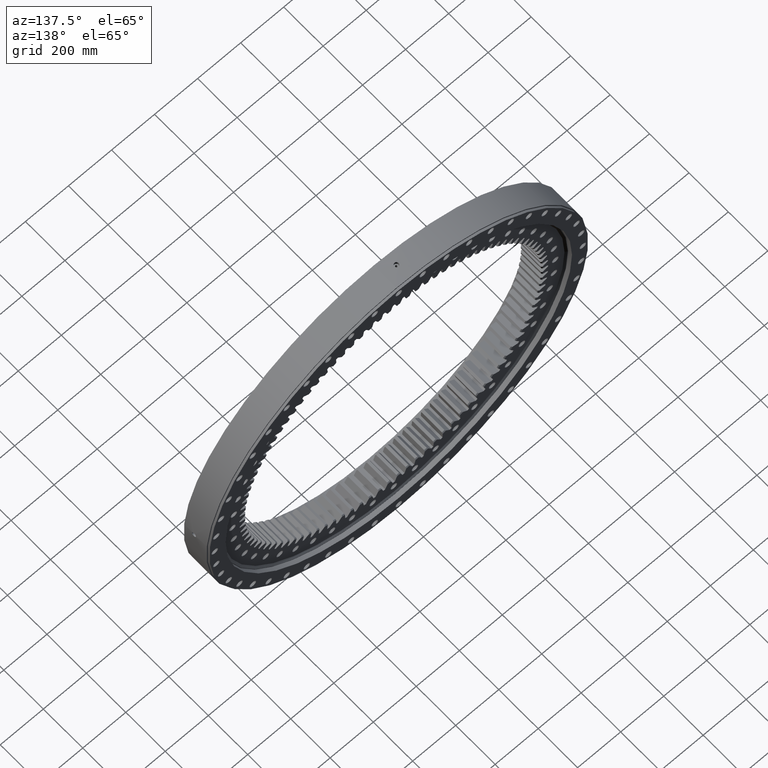
[diagram: clean part render]
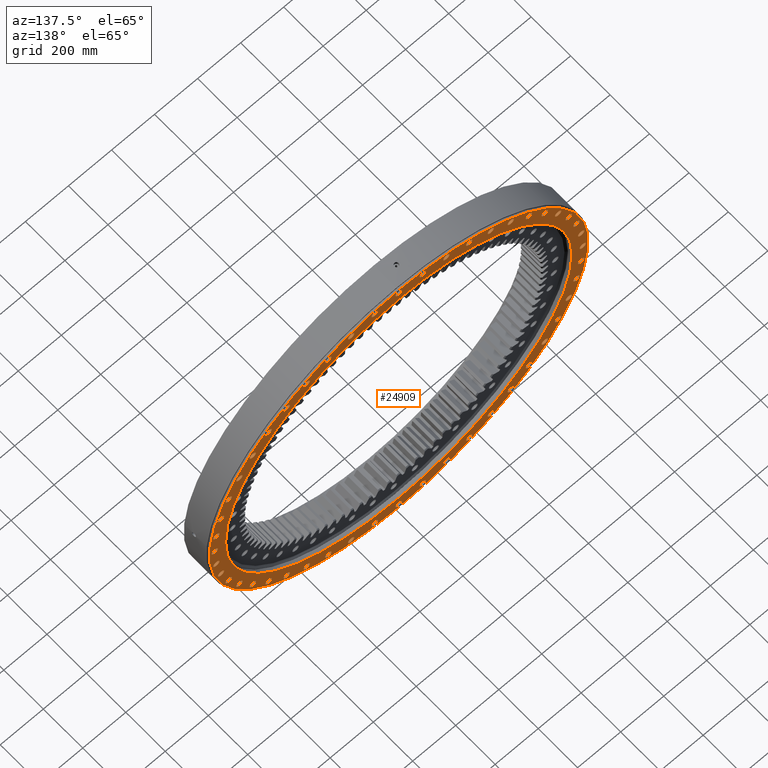
[diagram: same view with one face highlighted and labeled with its STEP entity id]
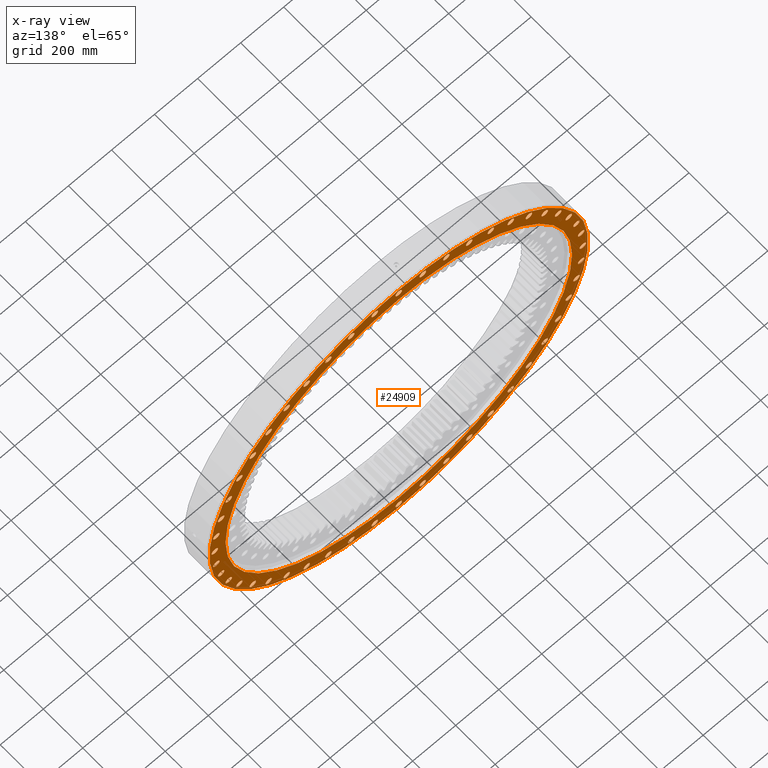
[diagram: x-ray of the same camera — body ghosted, the highlighted face saturated]
A machine part, auxiliary view. The second image highlights one B-rep face of the part: STEP entity #24909.
The next image is the same camera in x-ray: the body ghosted, the highlighted face saturated — about 0% of this face is hidden behind the body in this view.
In plain terms, the highlighted planar face has unit normal (0, -1, -0).
Its self-contained STEP definition (entity closure, byte-faithful):
#8 = EDGE_LOOP ( 'NONE', ( #16604, #21169 ) ) ;
#28 = DIRECTION ( 'NONE',  ( 0.9659258262890670900, 0.0000000000000000000, -0.2588190451025252900 ) ) ;
#35 = VERTEX_POINT ( 'NONE', #13804 ) ;
#52 = AXIS2_PLACEMENT_3D ( 'NONE', #21003, #20753, #20868 ) ;
#89 = CIRCLE ( 'NONE', #20817, 14.99999999999996300 ) ;
#222 = EDGE_CURVE ( 'NONE', #8349, #31458, #2360, .T. ) ;
#257 = CARTESIAN_POINT ( 'NONE',  ( -221.2902835626495100, 75.00000000000009900, -825.8665814771549100 ) ) ;
#286 = ORIENTED_EDGE ( 'NONE', *, *, #6674, .T. ) ;
#371 = ORIENTED_EDGE ( 'NONE', *, *, #4731, .T. ) ;
#382 = EDGE_LOOP ( 'NONE', ( #23423, #27228 ) ) ;
#392 = FACE_BOUND ( 'NONE', #15212, .T. ) ;
#441 = VERTEX_POINT ( 'NONE', #11409 ) ;
#460 = CIRCLE ( 'NONE', #543, 14.99999999999995900 ) ;
#461 = DIRECTION ( 'NONE',  ( 1.173697223544192200E-016, -1.000000000000000000, -3.494217355385783800E-017 ) ) ;
#470 = CARTESIAN_POINT ( 'NONE',  ( 804.9170002971537800, 75.00000000000019900, -327.1943346721438400 ) ) ;
#475 = DIRECTION ( 'NONE',  ( 1.173697223544192200E-016, -1.000000000000000000, -3.494217355385783800E-017 ) ) ;
#478 = DIRECTION ( 'NONE',  ( -0.1305261922200590700, 0.0000000000000000000, -0.9914448613738093800 ) ) ;
#543 = AXIS2_PLACEMENT_3D ( 'NONE', #16999, #16936, #16737 ) ;
#553 = CARTESIAN_POINT ( 'NONE',  ( 847.6853564746065800, 75.00000000000018500, 111.5998943481537000 ) ) ;
#562 = EDGE_CURVE ( 'NONE', #25970, #5228, #1208, .T. ) ;
#570 = DIRECTION ( 'NONE',  ( 0.7071067811865512400, 0.0000000000000000000, 0.7071067811865438000 ) ) ;
#581 = CIRCLE ( 'NONE', #29138, 15.00000000000004100 ) ;
#606 = DIRECTION ( 'NONE',  ( 1.173697223544192200E-016, -1.000000000000000000, -3.494217355385783800E-017 ) ) ;
#624 = CARTESIAN_POINT ( 'NONE',  ( 604.5762979144904000, 75.00000000000014200, 604.5762979145058600 ) ) ;
#662 = CARTESIAN_POINT ( 'NONE',  ( 327.1943346721411100, 75.00000000000011400, 804.9170002971548000 ) ) ;
#689 = EDGE_CURVE ( 'NONE', #14297, #21617, #460, .T. ) ;
#692 = CIRCLE ( 'NONE', #15457, 15.00000000000002700 ) ;
#758 = CIRCLE ( 'NONE', #14820, 15.00000000000004800 ) ;
#775 = DIRECTION ( 'NONE',  ( 1.173697223544192200E-016, -1.000000000000000000, -3.494217355385783800E-017 ) ) ;
#779 = CARTESIAN_POINT ( 'NONE',  ( -810.8665814771522900, 75.00000000000001400, -221.2902835626590600 ) ) ;
#783 = ORIENTED_EDGE ( 'NONE', *, *, #5537, .T. ) ;
#874 = AXIS2_PLACEMENT_3D ( 'NONE', #995, #958, #931 ) ;
#885 = DIRECTION ( 'NONE',  ( 1.173697223544192200E-016, -1.000000000000000000, -3.494217355385783800E-017 ) ) ;
#888 = CIRCLE ( 'NONE', #10096, 879.9999999999998900 ) ;
#913 = CARTESIAN_POINT ( 'NONE',  ( 327.1943346721583300, 75.00000000000017100, -804.9170002971474100 ) ) ;
#919 = DIRECTION ( 'NONE',  ( 1.173697223544192200E-016, -1.000000000000000000, -3.494217355385783800E-017 ) ) ;
#931 = DIRECTION ( 'NONE',  ( -0.5000000000000073300, 0.0000000000000000000, -0.8660254037844343800 ) ) ;
#958 = DIRECTION ( 'NONE',  ( 1.173697223544192200E-016, -1.000000000000000000, -3.494217355385783800E-017 ) ) ;
#992 = AXIS2_PLACEMENT_3D ( 'NONE', #5557, #22514, #8034 ) ;
#995 = CARTESIAN_POINT ( 'NONE',  ( -427.4999999999953400, 75.00000000000007100, -740.4517202356978500 ) ) ;
#1091 = ORIENTED_EDGE ( 'NONE', *, *, #18067, .T. ) ;
#1135 = FACE_BOUND ( 'NONE', #22009, .T. ) ;
#1208 = CIRCLE ( 'NONE', #20622, 15.00000000000000200 ) ;
#1216 = VERTEX_POINT ( 'NONE', #19551 ) ;
#1241 = ORIENTED_EDGE ( 'NONE', *, *, #19356, .T. ) ;
#1252 = CIRCLE ( 'NONE', #22620, 14.99999999999996400 ) ;
#1347 = AXIS2_PLACEMENT_3D ( 'NONE', #13562, #30500, #15984 ) ;
#1423 = AXIS2_PLACEMENT_3D ( 'NONE', #4673, #4645, #4604 ) ;
#1486 = DIRECTION ( 'NONE',  ( 1.173697223544192200E-016, -1.000000000000000000, -3.494217355385783800E-017 ) ) ;
#1501 = DIRECTION ( 'NONE',  ( 1.173697223544192200E-016, -1.000000000000000000, -3.494217355385783800E-017 ) ) ;
#1651 = CARTESIAN_POINT ( 'NONE',  ( 740.4517202356994400, 75.00000000000018500, -427.4999999999927800 ) ) ;
#1658 = EDGE_CURVE ( 'NONE', #3218, #24148, #20476, .T. ) ;
#1724 = EDGE_CURVE ( 'NONE', #14952, #18954, #25371, .T. ) ;
#1743 = CARTESIAN_POINT ( 'NONE',  ( -774.9170002971486600, 75.00000000000001400, -327.1943346721552600 ) ) ;
#1789 = EDGE_CURVE ( 'NONE', #15796, #11023, #30780, .T. ) ;
#1814 = CARTESIAN_POINT ( 'NONE',  ( 604.5762979145037000, 75.00000000000018500, -589.5762979144925600 ) ) ;
#1854 = DIRECTION ( 'NONE',  ( -0.9914448613738117100, 0.0000000000000000000, -0.1305261922200417200 ) ) ;
#1860 = DIRECTION ( 'NONE',  ( 1.173697223544192200E-016, -1.000000000000000000, -3.494217355385783800E-017 ) ) ;
#1883 = CARTESIAN_POINT ( 'NONE',  ( 825.8665814771508200, 75.00000000000017100, 221.2902835626648300 ) ) ;
#1891 = FACE_BOUND ( 'NONE', #13734, .T. ) ;
#1964 = CARTESIAN_POINT ( 'NONE',  ( -847.6853564746072600, 75.00000000000000000, -111.5998943481481500 ) ) ;
#2015 = CIRCLE ( 'NONE', #13797, 15.00000000000001400 ) ;
#2111 = ORIENTED_EDGE ( 'NONE', *, *, #9099, .T. ) ;
#2163 = EDGE_CURVE ( 'NONE', #23152, #23458, #3056, .T. ) ;
#2169 = CARTESIAN_POINT ( 'NONE',  ( 221.2902835626619500, 75.00000000000015600, -840.8665814771516100 ) ) ;
#2224 = EDGE_LOOP ( 'NONE', ( #13581, #18143 ) ) ;
#2274 = VERTEX_POINT ( 'NONE', #1814 ) ;
#2276 = CARTESIAN_POINT ( 'NONE',  ( 427.4999999999901100, 75.00000000000012800, 740.4517202357006900 ) ) ;
#2312 = DIRECTION ( 'NONE',  ( 1.173697223544192200E-016, -1.000000000000000000, -3.494217355385783800E-017 ) ) ;
#2360 = CIRCLE ( 'NONE', #17998, 15.00000000000004400 ) ;
#2372 = DIRECTION ( 'NONE',  ( 5.551115123125782700E-017, -3.447897592003592100E-017, 1.000000000000000000 ) ) ;
#2375 = DIRECTION ( 'NONE',  ( -0.9238795325112907400, 0.0000000000000000000, -0.3826834323650801800 ) ) ;
#2378 = CIRCLE ( 'NONE', #20241, 15.00000000000003000 ) ;
#2399 = EDGE_CURVE ( 'NONE', #10251, #8684, #29974, .T. ) ;
#2424 = ORIENTED_EDGE ( 'NONE', *, *, #8448, .T. ) ;
#2453 = CIRCLE ( 'NONE', #25208, 15.00000000000004800 ) ;
#2471 = CARTESIAN_POINT ( 'NONE',  ( -840.8665814771542300, 74.99999999999998600, 221.2902835626524100 ) ) ;
#2569 = EDGE_CURVE ( 'NONE', #12690, #9134, #26918, .T. ) ;
#2643 = EDGE_CURVE ( 'NONE', #27761, #24642, #4551, .T. ) ;
#2662 = FACE_BOUND ( 'NONE', #15269, .T. ) ;
#2667 = ORIENTED_EDGE ( 'NONE', *, *, #15494, .T. ) ;
#2770 = EDGE_LOOP ( 'NONE', ( #26163, #9831 ) ) ;
#2773 = EDGE_CURVE ( 'NONE', #23498, #30369, #28032, .T. ) ;
#2847 = ORIENTED_EDGE ( 'NONE', *, *, #6192, .T. ) ;
#2865 = AXIS2_PLACEMENT_3D ( 'NONE', #16582, #29830, #31414 ) ;
#2870 = VERTEX_POINT ( 'NONE', #20858 ) ;
#3009 = EDGE_CURVE ( 'NONE', #30369, #23498, #14797, .T. ) ;
#3014 = AXIS2_PLACEMENT_3D ( 'NONE', #2276, #19248, #4710 ) ;
#3017 = VERTEX_POINT ( 'NONE', #21112 ) ;
#3016 = DIRECTION ( 'NONE',  ( 0.7071067811865512400, 0.0000000000000000000, 0.7071067811865438000 ) ) ;
#3040 = AXIS2_PLACEMENT_3D ( 'NONE', #4935, #4895, #4826 ) ;
#3052 = DIRECTION ( 'NONE',  ( 1.173697223544192200E-016, -1.000000000000000000, -3.494217355385783800E-017 ) ) ;
#3056 = CIRCLE ( 'NONE', #13790, 804.9999999999998900 ) ;
#3057 = CARTESIAN_POINT ( 'NONE',  ( 604.5762979144904000, 75.00000000000014200, 604.5762979145058600 ) ) ;
#3067 = CARTESIAN_POINT ( 'NONE',  ( -8.802729176581452600E-015, 75.00000000000009900, 3.360831017227656500E-015 ) ) ;
#3096 = DIRECTION ( 'NONE',  ( 0.7933533402912375000, 0.0000000000000000000, 0.6087614290087175500 ) ) ;
#3140 = DIRECTION ( 'NONE',  ( 1.173697223544192200E-016, -1.000000000000000000, -3.494217355385783800E-017 ) ) ;
#3175 = CIRCLE ( 'NONE', #7060, 879.9999999999998900 ) ;
#3189 = CARTESIAN_POINT ( 'NONE',  ( 678.3171059489994800, 75.00000000000017100, 520.4910218024646200 ) ) ;
#3210 = EDGE_CURVE ( 'NONE', #28924, #30920, #23855, .T. ) ;
#3217 = EDGE_CURVE ( 'NONE', #8600, #19748, #17436, .T. ) ;
#3218 = VERTEX_POINT ( 'NONE', #13204 ) ;
#3222 = DIRECTION ( 'NONE',  ( 1.173697223544192200E-016, -1.000000000000000000, -3.494217355385783800E-017 ) ) ;
#3225 = VERTEX_POINT ( 'NONE', #29493 ) ;
#3269 = ORIENTED_EDGE ( 'NONE', *, *, #15780, .T. ) ;
#3318 = ORIENTED_EDGE ( 'NONE', *, *, #28865, .T. ) ;
#3337 = CARTESIAN_POINT ( 'NONE',  ( -740.4517202356927300, 75.00000000000002800, -427.5000000000038100 ) ) ;
#3352 = DIRECTION ( 'NONE',  ( 1.173697223544192200E-016, -1.000000000000000000, -3.494217355385783800E-017 ) ) ;
#3360 = CIRCLE ( 'NONE', #1423, 14.99999999999998000 ) ;
#3362 = ORIENTED_EDGE ( 'NONE', *, *, #2163, .T. ) ;
#3385 = CARTESIAN_POINT ( 'NONE',  ( -840.0000000000000000, 75.00000000000000000, -3.459537673081067300E-012 ) ) ;
#3410 = FACE_BOUND ( 'NONE', #12445, .T. ) ;
#3455 = ORIENTED_EDGE ( 'NONE', *, *, #5477, .T. ) ;
#3490 = VERTEX_POINT ( 'NONE', #9541 ) ;
#3514 = CARTESIAN_POINT ( 'NONE',  ( -774.9170002971513900, 74.99999999999998600, 327.1943346721489000 ) ) ;
#3525 = DIRECTION ( 'NONE',  ( 1.173697223544192200E-016, -1.000000000000000000, -3.494217355385783800E-017 ) ) ;
#3531 = CIRCLE ( 'NONE', #29582, 15.00000000000002800 ) ;
#3541 = DIRECTION ( 'NONE',  ( 0.3826834323650834000, 0.0000000000000000000, -0.9238795325112894000 ) ) ;
#3580 = CARTESIAN_POINT ( 'NONE',  ( -847.6853564746072600, 75.00000000000000000, -111.5998943481481500 ) ) ;
#3600 = DIRECTION ( 'NONE',  ( -0.8660254037844328200, 0.0000000000000000000, 0.5000000000000101000 ) ) ;
#3607 = DIRECTION ( 'NONE',  ( 1.173697223544192200E-016, -1.000000000000000000, -3.494217355385783800E-017 ) ) ;
#3613 = EDGE_CURVE ( 'NONE', #31061, #19394, #16260, .T. ) ;
#3638 = VERTEX_POINT ( 'NONE', #18527 ) ;
#3666 = DIRECTION ( 'NONE',  ( 1.173697223544192200E-016, -1.000000000000000000, -3.494217355385783800E-017 ) ) ;
#3670 = CARTESIAN_POINT ( 'NONE',  ( 327.1943346721583300, 75.00000000000017100, -789.9170002971474100 ) ) ;
#3682 = AXIS2_PLACEMENT_3D ( 'NONE', #14216, #25228, #28756 ) ;
#3781 = DIRECTION ( 'NONE',  ( 0.2588190451025148000, 0.0000000000000000000, -0.9659258262890699800 ) ) ;
#3824 = DIRECTION ( 'NONE',  ( 1.173697223544192200E-016, -1.000000000000000000, -3.494217355385783800E-017 ) ) ;
#3834 = AXIS2_PLACEMENT_3D ( 'NONE', #28138, #28071, #28062 ) ;
#3862 = DIRECTION ( 'NONE',  ( -0.2588190451025079200, 0.0000000000000000000, 0.9659258262890717500 ) ) ;
#3863 = CARTESIAN_POINT ( 'NONE',  ( 221.2902835626619500, 75.00000000000015600, -825.8665814771516100 ) ) ;
#3874 = DIRECTION ( 'NONE',  ( 1.173697223544192200E-016, -1.000000000000000000, -3.494217355385783800E-017 ) ) ;
#3887 = CARTESIAN_POINT ( 'NONE',  ( -740.4517202356962600, 75.00000000000000000, 427.4999999999979500 ) ) ;
#3920 = DIRECTION ( 'NONE',  ( 1.173697223544192200E-016, -1.000000000000000000, -3.494217355385783800E-017 ) ) ;
#3928 = CARTESIAN_POINT ( 'NONE',  ( -221.2902835626562100, 75.00000000000004300, 825.8665814771530900 ) ) ;
#3991 = DIRECTION ( 'NONE',  ( 1.173697223544192200E-016, -1.000000000000000000, -3.494217355385783800E-017 ) ) ;
#3995 = CIRCLE ( 'NONE', #13687, 14.99999999999998800 ) ;
#4001 = EDGE_CURVE ( 'NONE', #24560, #22443, #11321, .T. ) ;
#4004 = EDGE_CURVE ( 'NONE', #25458, #3017, #12092, .T. ) ;
#4015 = CARTESIAN_POINT ( 'NONE',  ( -678.3171059490030100, 75.00000000000002800, -520.4910218024601800 ) ) ;
#4068 = CARTESIAN_POINT ( 'NONE',  ( 111.5998943481320300, 75.00000000000008500, 847.6853564746095300 ) ) ;
#4080 = DIRECTION ( 'NONE',  ( 0.8660254037844359300, 0.0000000000000000000, -0.5000000000000045500 ) ) ;
#4085 = AXIS2_PLACEMENT_3D ( 'NONE', #11126, #28036, #13555 ) ;
#4105 = EDGE_CURVE ( 'NONE', #23638, #9806, #27564, .T. ) ;
#4106 = AXIS2_PLACEMENT_3D ( 'NONE', #10549, #8687, #8612 ) ;
#4172 = FACE_BOUND ( 'NONE', #6303, .T. ) ;
#4175 = EDGE_LOOP ( 'NONE', ( #19962, #20312 ) ) ;
#4186 = ORIENTED_EDGE ( 'NONE', *, *, #16015, .T. ) ;
#4240 = AXIS2_PLACEMENT_3D ( 'NONE', #17767, #3222, #20196 ) ;
#4245 = ORIENTED_EDGE ( 'NONE', *, *, #21055, .T. ) ;
#4276 = DIRECTION ( 'NONE',  ( -0.1305261922200590700, 0.0000000000000000000, -0.9914448613738093800 ) ) ;
#4301 = EDGE_CURVE ( 'NONE', #26101, #18133, #10922, .T. ) ;
#4303 = EDGE_CURVE ( 'NONE', #27386, #26257, #22282, .T. ) ;
#4321 = DIRECTION ( 'NONE',  ( 0.9659258262890693100, 0.0000000000000000000, 0.2588190451025165200 ) ) ;
#4383 = CARTESIAN_POINT ( 'NONE',  ( -111.5998943481379700, 75.00000000000011400, -832.6853564746087400 ) ) ;
#4388 = DIRECTION ( 'NONE',  ( 0.8660254037844359300, 0.0000000000000000000, -0.5000000000000045500 ) ) ;
#4398 = CARTESIAN_POINT ( 'NONE',  ( -619.5762979144946000, 75.00000000000005700, -604.5762979145016500 ) ) ;
#4411 = CARTESIAN_POINT ( 'NONE',  ( -427.5000000000011900, 75.00000000000001400, 740.4517202356943200 ) ) ;
#4466 = ORIENTED_EDGE ( 'NONE', *, *, #3009, .T. ) ;
#4480 = CARTESIAN_POINT ( 'NONE',  ( 840.8665814771509300, 75.00000000000017100, 221.2902835626648300 ) ) ;
#4513 = ORIENTED_EDGE ( 'NONE', *, *, #2399, .T. ) ;
#4531 = CARTESIAN_POINT ( 'NONE',  ( -1.648346119732833300E-013, 75.00000000000012800, -879.9999999999998900 ) ) ;
#4551 = CIRCLE ( 'NONE', #7716, 15.00000000000001400 ) ;
#4575 = DIRECTION ( 'NONE',  ( 1.173697223544192200E-016, -1.000000000000000000, -3.494217355385783800E-017 ) ) ;
#4604 = DIRECTION ( 'NONE',  ( -0.6087614290087130000, 0.0000000000000000000, 0.7933533402912410500 ) ) ;
#4645 = DIRECTION ( 'NONE',  ( 1.173697223544192200E-016, -1.000000000000000000, -3.494217355385783800E-017 ) ) ;
#4673 = CARTESIAN_POINT ( 'NONE',  ( -520.4910218024579100, 75.00000000000001400, 678.3171059490047100 ) ) ;
#4701 = VERTEX_POINT ( 'NONE', #22028 ) ;
#4710 = DIRECTION ( 'NONE',  ( 0.5000000000000017800, 0.0000000000000000000, 0.8660254037844376000 ) ) ;
#4731 = EDGE_CURVE ( 'NONE', #13913, #24444, #5182, .T. ) ;
#4788 = CARTESIAN_POINT ( 'NONE',  ( -604.5762979144994900, 75.00000000000000000, 589.5762979144967600 ) ) ;
#4798 = VERTEX_POINT ( 'NONE', #20253 ) ;
#4817 = ORIENTED_EDGE ( 'NONE', *, *, #13146, .T. ) ;
#4825 = FACE_BOUND ( 'NONE', #18172, .T. ) ;
#4826 = DIRECTION ( 'NONE',  ( 0.1305261922200444700, 0.0000000000000000000, -0.9914448613738112700 ) ) ;
#4868 = ORIENTED_EDGE ( 'NONE', *, *, #27988, .T. ) ;
#4895 = DIRECTION ( 'NONE',  ( 1.173697223544192200E-016, -1.000000000000000000, -3.494217355385783800E-017 ) ) ;
#4935 = CARTESIAN_POINT ( 'NONE',  ( 111.5998943481507400, 75.00000000000014200, -847.6853564746069200 ) ) ;
#4941 = FACE_BOUND ( 'NONE', #4175, .T. ) ;
#4950 = EDGE_LOOP ( 'NONE', ( #26956, #3455 ) ) ;
#4958 = CARTESIAN_POINT ( 'NONE',  ( 740.4517202356994400, 75.00000000000018500, -427.4999999999927800 ) ) ;
#4982 = VERTEX_POINT ( 'NONE', #16186 ) ;
#5046 = EDGE_LOOP ( 'NONE', ( #27171, #286 ) ) ;
#5052 = CIRCLE ( 'NONE', #4240, 14.99999999999994100 ) ;
#5098 = AXIS2_PLACEMENT_3D ( 'NONE', #14893, #14825, #14207 ) ;
#5121 = EDGE_CURVE ( 'NONE', #24642, #27761, #21074, .T. ) ;
#5138 = AXIS2_PLACEMENT_3D ( 'NONE', #7839, #24744, #10263 ) ;
#5182 = CIRCLE ( 'NONE', #52, 14.99999999999998900 ) ;
#5212 = AXIS2_PLACEMENT_3D ( 'NONE', #16714, #16388, #19186 ) ;
#5225 = VERTEX_POINT ( 'NONE', #25512 ) ;
#5228 = VERTEX_POINT ( 'NONE', #25000 ) ;
#5290 = EDGE_LOOP ( 'NONE', ( #2667, #4817 ) ) ;
#5294 = DIRECTION ( 'NONE',  ( 0.9238795325112880700, 0.0000000000000000000, 0.3826834323650865100 ) ) ;
#5320 = CIRCLE ( 'NONE', #12176, 15.00000000000002700 ) ;
#5341 = EDGE_LOOP ( 'NONE', ( #31137, #4186 ) ) ;
#5357 = EDGE_CURVE ( 'NONE', #25804, #7885, #28668, .T. ) ;
#5388 = DIRECTION ( 'NONE',  ( 1.173697223544192200E-016, -1.000000000000000000, -3.494217355385783800E-017 ) ) ;
#5405 = CIRCLE ( 'NONE', #14377, 15.00000000000003000 ) ;
#5406 = VERTEX_POINT ( 'NONE', #8927 ) ;
#5477 = EDGE_CURVE ( 'NONE', #24544, #15408, #30544, .T. ) ;
#5485 = CARTESIAN_POINT ( 'NONE',  ( 789.9170002971461600, 75.00000000000017100, 327.1943346721610600 ) ) ;
#5493 = DIRECTION ( 'NONE',  ( 5.551115123125782700E-017, -3.154042683594195000E-017, 1.000000000000000000 ) ) ;
#5496 = VERTEX_POINT ( 'NONE', #7925 ) ;
#5537 = EDGE_CURVE ( 'NONE', #17277, #5496, #24082, .T. ) ;
#5557 = CARTESIAN_POINT ( 'NONE',  ( 825.8665814771508200, 75.00000000000017100, 221.2902835626648300 ) ) ;
#5571 = FACE_BOUND ( 'NONE', #7965, .T. ) ;
#5627 = AXIS2_PLACEMENT_3D ( 'NONE', #21809, #21785, #21752 ) ;
#5640 = CIRCLE ( 'NONE', #23128, 15.00000000000005300 ) ;
#5643 = EDGE_LOOP ( 'NONE', ( #16165, #27223 ) ) ;
#5710 = CARTESIAN_POINT ( 'NONE',  ( -427.4999999999953400, 75.00000000000007100, -725.4517202356978500 ) ) ;
#5748 = DIRECTION ( 'NONE',  ( 0.9914448613738100500, 0.0000000000000000000, -0.1305261922200544900 ) ) ;
#5773 = VERTEX_POINT ( 'NONE', #14019 ) ;
#5777 = DIRECTION ( 'NONE',  ( 1.173697223544192200E-016, -1.000000000000000000, -3.494217355385783800E-017 ) ) ;
#5788 = CARTESIAN_POINT ( 'NONE',  ( 847.6853564746091900, 75.00000000000018500, -111.5998943481350100 ) ) ;
#5789 = DIRECTION ( 'NONE',  ( -0.8660254037844427000, 0.0000000000000000000, -0.4999999999999929500 ) ) ;
#5824 = CARTESIAN_POINT ( 'NONE',  ( -870.0000000000000000, 75.00000000000000000, -3.456035368345408300E-012 ) ) ;
#5957 = CIRCLE ( 'NONE', #7594, 14.99999999999995900 ) ;
#5981 = EDGE_CURVE ( 'NONE', #8599, #13655, #7042, .T. ) ;
#6014 = AXIS2_PLACEMENT_3D ( 'NONE', #12369, #29308, #14801 ) ;
#6031 = DIRECTION ( 'NONE',  ( -0.9914448613738117100, 0.0000000000000000000, -0.1305261922200417200 ) ) ;
#6032 = CARTESIAN_POINT ( 'NONE',  ( -1.509025102686205800E-013, 75.00000000000012800, -804.9999999999998900 ) ) ;
#6034 = DIRECTION ( 'NONE',  ( 1.173697223544192200E-016, -1.000000000000000000, -3.494217355385783800E-017 ) ) ;
#6070 = FACE_BOUND ( 'NONE', #11813, .T. ) ;
#6158 = DIRECTION ( 'NONE',  ( -0.7933533402912410500, 0.0000000000000000000, -0.6087614290087130000 ) ) ;
#6192 = EDGE_CURVE ( 'NONE', #25415, #15665, #2453, .T. ) ;
#6267 = CARTESIAN_POINT ( 'NONE',  ( 520.4910218024622300, 75.00000000000017100, -663.3171059490013000 ) ) ;
#6303 = EDGE_LOOP ( 'NONE', ( #21884, #24555 ) ) ;
#6319 = EDGE_CURVE ( 'NONE', #29526, #9526, #6634, .T. ) ;
#6341 = FACE_BOUND ( 'NONE', #28427, .T. ) ;
#6447 = EDGE_LOOP ( 'NONE', ( #3318, #15110 ) ) ;
#6480 = EDGE_LOOP ( 'NONE', ( #30299, #24228 ) ) ;
#6529 = DIRECTION ( 'NONE',  ( 0.1305261922200517400, 0.0000000000000000000, 0.9914448613738103800 ) ) ;
#6634 = CIRCLE ( 'NONE', #18146, 15.00000000000003000 ) ;
#6674 = EDGE_CURVE ( 'NONE', #12587, #30352, #3175, .T. ) ;
#6719 = CARTESIAN_POINT ( 'NONE',  ( 862.6853564746091900, 75.00000000000018500, -111.5998943481350100 ) ) ;
#6739 = AXIS2_PLACEMENT_3D ( 'NONE', #13737, #13881, #13667 ) ;
#6778 = DIRECTION ( 'NONE',  ( 0.6087614290087212100, 0.0000000000000000000, 0.7933533402912347200 ) ) ;
#6834 = DIRECTION ( 'NONE',  ( 5.551115123125782700E-017, -3.154042683594195000E-017, 1.000000000000000000 ) ) ;
#6842 = FACE_BOUND ( 'NONE', #8, .T. ) ;
#6852 = VERTEX_POINT ( 'NONE', #28106 ) ;
#6884 = DIRECTION ( 'NONE',  ( -0.4999999999999901700, 0.0000000000000000000, 0.8660254037844442600 ) ) ;
#6886 = ORIENTED_EDGE ( 'NONE', *, *, #1658, .T. ) ;
#6893 = DIRECTION ( 'NONE',  ( 1.173697223544192200E-016, -1.000000000000000000, -3.494217355385783800E-017 ) ) ;
#6940 = AXIS2_PLACEMENT_3D ( 'NONE', #8592, #8554, #8546 ) ;
#6941 = EDGE_CURVE ( 'NONE', #20748, #2870, #9266, .T. ) ;
#6957 = VERTEX_POINT ( 'NONE', #21296 ) ;
#6976 = AXIS2_PLACEMENT_3D ( 'NONE', #22277, #20595, #27042 ) ;
#7042 = CIRCLE ( 'NONE', #4106, 14.99999999999998400 ) ;
#7060 = AXIS2_PLACEMENT_3D ( 'NONE', #7274, #7158, #6834 ) ;
#7069 = ORIENTED_EDGE ( 'NONE', *, *, #5981, .T. ) ;
#7137 = CARTESIAN_POINT ( 'NONE',  ( 3.588374756458110000E-014, 75.00000000000007100, 804.9999999999998900 ) ) ;
#7158 = DIRECTION ( 'NONE',  ( -1.173697223544192200E-016, 1.000000000000000000, 3.494217355385783800E-017 ) ) ;
#7239 = EDGE_LOOP ( 'NONE', ( #22193, #19254 ) ) ;
#7256 = CARTESIAN_POINT ( 'NONE',  ( 520.4910218024472200, 75.00000000000012800, 678.3171059490129000 ) ) ;
#7274 = CARTESIAN_POINT ( 'NONE',  ( -8.802729176581452600E-015, 75.00000000000009900, 3.360831017227656500E-015 ) ) ;
#7302 = VERTEX_POINT ( 'NONE', #4480 ) ;
#7323 = CARTESIAN_POINT ( 'NONE',  ( 221.2902835626437600, 75.00000000000009900, 825.8665814771563900 ) ) ;
#7334 = ORIENTED_EDGE ( 'NONE', *, *, #9895, .T. ) ;
#7336 = CARTESIAN_POINT ( 'NONE',  ( 870.0000000000000000, 75.00000000000018500, 9.378990648069203500E-012 ) ) ;
#7404 = ORIENTED_EDGE ( 'NONE', *, *, #26204, .T. ) ;
#7477 = EDGE_CURVE ( 'NONE', #14775, #6957, #20520, .T. ) ;
#7506 = CIRCLE ( 'NONE', #4085, 15.00000000000000700 ) ;
#7540 = CIRCLE ( 'NONE', #14886, 14.99999999999996800 ) ;
#7577 = EDGE_LOOP ( 'NONE', ( #11717, #7404 ) ) ;
#7594 = AXIS2_PLACEMENT_3D ( 'NONE', #16799, #16734, #16698 ) ;
#7620 = FACE_BOUND ( 'NONE', #4950, .T. ) ;
#7716 = AXIS2_PLACEMENT_3D ( 'NONE', #29870, #24569, #22630 ) ;
#7735 = CIRCLE ( 'NONE', #1347, 15.00000000000001400 ) ;
#7794 = VERTEX_POINT ( 'NONE', #9907 ) ;
#7823 = AXIS2_PLACEMENT_3D ( 'NONE', #18396, #3874, #20806 ) ;
#7839 = CARTESIAN_POINT ( 'NONE',  ( 678.3171059490110800, 75.00000000000018500, -520.4910218024495000 ) ) ;
#7849 = EDGE_LOOP ( 'NONE', ( #12451, #19886 ) ) ;
#7864 = CARTESIAN_POINT ( 'NONE',  ( -789.9170002971513900, 74.99999999999998600, 327.1943346721489000 ) ) ;
#7885 = VERTEX_POINT ( 'NONE', #3385 ) ;
#7915 = CARTESIAN_POINT ( 'NONE',  ( 847.6853564746065800, 75.00000000000018500, 111.5998943481537000 ) ) ;
#7925 = CARTESIAN_POINT ( 'NONE',  ( -221.2902835626495100, 75.00000000000009900, -840.8665814771549100 ) ) ;
#7944 = EDGE_LOOP ( 'NONE', ( #21135, #12486 ) ) ;
#7965 = EDGE_LOOP ( 'NONE', ( #11389, #13629 ) ) ;
#7969 = CARTESIAN_POINT ( 'NONE',  ( -427.5000000000011900, 75.00000000000001400, 755.4517202356943200 ) ) ;
#7972 = CARTESIAN_POINT ( 'NONE',  ( -862.6853564746082800, 75.00000000000000000, 111.5998943481413200 ) ) ;
#8034 = DIRECTION ( 'NONE',  ( 0.9659258262890693100, 0.0000000000000000000, 0.2588190451025165200 ) ) ;
#8132 = EDGE_CURVE ( 'NONE', #5225, #14945, #12564, .T. ) ;
#8149 = EDGE_CURVE ( 'NONE', #6852, #15642, #5320, .T. ) ;
#8186 = CIRCLE ( 'NONE', #17160, 15.00000000000001600 ) ;
#8299 = AXIS2_PLACEMENT_3D ( 'NONE', #22244, #22189, #22184 ) ;
#8315 = CIRCLE ( 'NONE', #11183, 15.00000000000002800 ) ;
#8349 = VERTEX_POINT ( 'NONE', #13969 ) ;
#8352 = FACE_BOUND ( 'NONE', #30396, .T. ) ;
#8448 = EDGE_CURVE ( 'NONE', #15665, #25415, #758, .T. ) ;
#8546 = DIRECTION ( 'NONE',  ( -0.7071067811865512400, 0.0000000000000000000, -0.7071067811865438000 ) ) ;
#8554 = DIRECTION ( 'NONE',  ( 1.173697223544192200E-016, -1.000000000000000000, -3.494217355385783800E-017 ) ) ;
#8592 = CARTESIAN_POINT ( 'NONE',  ( -604.5762979144946000, 75.00000000000005700, -604.5762979145016500 ) ) ;
#8595 = ORIENTED_EDGE ( 'NONE', *, *, #15141, .T. ) ;
#8599 = VERTEX_POINT ( 'NONE', #4788 ) ;
#8600 = VERTEX_POINT ( 'NONE', #6719 ) ;
#8612 = DIRECTION ( 'NONE',  ( -0.7071067811865364700, 0.0000000000000000000, 0.7071067811865586700 ) ) ;
#8664 = DIRECTION ( 'NONE',  ( 1.173697223544192200E-016, -1.000000000000000000, -3.494217355385783800E-017 ) ) ;
#8684 = VERTEX_POINT ( 'NONE', #1743 ) ;
#8687 = DIRECTION ( 'NONE',  ( 1.173697223544192200E-016, -1.000000000000000000, -3.494217355385783800E-017 ) ) ;
#8759 = CARTESIAN_POINT ( 'NONE',  ( -604.5762979144994900, 75.00000000000000000, 619.5762979144967600 ) ) ;
#8835 = ORIENTED_EDGE ( 'NONE', *, *, #23556, .T. ) ;
#8882 = AXIS2_PLACEMENT_3D ( 'NONE', #15302, #775, #17740 ) ;
#8888 = EDGE_CURVE ( 'NONE', #441, #5773, #14418, .T. ) ;
#8927 = CARTESIAN_POINT ( 'NONE',  ( 520.4910218024472200, 75.00000000000012800, 693.3171059490129000 ) ) ;
#8940 = ORIENTED_EDGE ( 'NONE', *, *, #8132, .T. ) ;
#8974 = ORIENTED_EDGE ( 'NONE', *, *, #28534, .T. ) ;
#9066 = CARTESIAN_POINT ( 'NONE',  ( 427.5000000000063700, 75.00000000000017100, -755.4517202356912500 ) ) ;
#9096 = ORIENTED_EDGE ( 'NONE', *, *, #17771, .T. ) ;
#9099 = EDGE_CURVE ( 'NONE', #3638, #14477, #16275, .T. ) ;
#9104 = CARTESIAN_POINT ( 'NONE',  ( -520.4910218024579100, 75.00000000000001400, 693.3171059490047100 ) ) ;
#9124 = FACE_BOUND ( 'NONE', #7944, .T. ) ;
#9134 = VERTEX_POINT ( 'NONE', #23585 ) ;
#9266 = CIRCLE ( 'NONE', #31427, 15.00000000000003000 ) ;
#9273 = DIRECTION ( 'NONE',  ( 0.9238795325112855200, 0.0000000000000000000, -0.3826834323650928300 ) ) ;
#9304 = ORIENTED_EDGE ( 'NONE', *, *, #5121, .T. ) ;
#9310 = DIRECTION ( 'NONE',  ( 1.173697223544192200E-016, -1.000000000000000000, -3.494217355385783800E-017 ) ) ;
#9318 = VERTEX_POINT ( 'NONE', #19297 ) ;
#9377 = CARTESIAN_POINT ( 'NONE',  ( 789.9170002971537800, 75.00000000000019900, -327.1943346721438400 ) ) ;
#9394 = ORIENTED_EDGE ( 'NONE', *, *, #11864, .T. ) ;
#9494 = DIRECTION ( 'NONE',  ( 1.173697223544192200E-016, -1.000000000000000000, -3.494217355385783800E-017 ) ) ;
#9526 = VERTEX_POINT ( 'NONE', #13911 ) ;
#9541 = CARTESIAN_POINT ( 'NONE',  ( 589.5762979144904000, 75.00000000000014200, 604.5762979145058600 ) ) ;
#9648 = CIRCLE ( 'NONE', #28552, 15.00000000000001400 ) ;
#9674 = CARTESIAN_POINT ( 'NONE',  ( 810.8665814771508200, 75.00000000000017100, 221.2902835626648300 ) ) ;
#9734 = CARTESIAN_POINT ( 'NONE',  ( -327.1943346721465100, 75.00000000000008500, -789.9170002971524100 ) ) ;
#9741 = DIRECTION ( 'NONE',  ( 0.2588190451025199600, 0.0000000000000000000, 0.9659258262890684200 ) ) ;
#9751 = AXIS2_PLACEMENT_3D ( 'NONE', #13320, #29179, #26169 ) ;
#9767 = CARTESIAN_POINT ( 'NONE',  ( 604.5762979145037000, 75.00000000000018500, -604.5762979144925600 ) ) ;
#9768 = CARTESIAN_POINT ( 'NONE',  ( 789.9170002971537800, 75.00000000000019900, -327.1943346721438400 ) ) ;
#9806 = VERTEX_POINT ( 'NONE', #7336 ) ;
#9813 = CIRCLE ( 'NONE', #6739, 14.99999999999998000 ) ;
#9831 = ORIENTED_EDGE ( 'NONE', *, *, #5357, .T. ) ;
#9841 = CARTESIAN_POINT ( 'NONE',  ( 832.6853564746091900, 75.00000000000018500, -111.5998943481350100 ) ) ;
#9894 = FACE_BOUND ( 'NONE', #7849, .T. ) ;
#9895 = EDGE_CURVE ( 'NONE', #4982, #11883, #11374, .T. ) ;
#9907 = CARTESIAN_POINT ( 'NONE',  ( 520.4910218024472200, 75.00000000000012800, 663.3171059490127800 ) ) ;
#9922 = VERTEX_POINT ( 'NONE', #4398 ) ;
#9962 = EDGE_CURVE ( 'NONE', #29675, #22180, #8315, .T. ) ;
#9989 = ORIENTED_EDGE ( 'NONE', *, *, #10091, .T. ) ;
#10091 = EDGE_CURVE ( 'NONE', #21617, #14297, #18175, .T. ) ;
#10096 = AXIS2_PLACEMENT_3D ( 'NONE', #3067, #20023, #5493 ) ;
#10144 = ORIENTED_EDGE ( 'NONE', *, *, #14357, .T. ) ;
#10198 = ORIENTED_EDGE ( 'NONE', *, *, #15632, .T. ) ;
#10226 = VERTEX_POINT ( 'NONE', #23027 ) ;
#10251 = VERTEX_POINT ( 'NONE', #12613 ) ;
#10257 = EDGE_LOOP ( 'NONE', ( #14169, #15738 ) ) ;
#10263 = DIRECTION ( 'NONE',  ( 0.7933533402912311700, 0.0000000000000000000, -0.6087614290087257600 ) ) ;
#10266 = EDGE_LOOP ( 'NONE', ( #2111, #8974 ) ) ;
#10288 = DIRECTION ( 'NONE',  ( -0.9238795325112817400, 0.0000000000000000000, 0.3826834323651017200 ) ) ;
#10307 = EDGE_CURVE ( 'NONE', #5406, #7794, #20789, .T. ) ;
#10344 = DIRECTION ( 'NONE',  ( 0.9914448613738108300, 0.0000000000000000000, 0.1305261922200481000 ) ) ;
#10390 = PLANE ( 'NONE',  #22555 ) ;
#10407 = ORIENTED_EDGE ( 'NONE', *, *, #28969, .T. ) ;
#10452 = CARTESIAN_POINT ( 'NONE',  ( 427.5000000000063700, 75.00000000000017100, -740.4517202356912500 ) ) ;
#10533 = DIRECTION ( 'NONE',  ( 1.173697223544192200E-016, -1.000000000000000000, -3.494217355385783800E-017 ) ) ;
#10549 = CARTESIAN_POINT ( 'NONE',  ( -604.5762979144994900, 75.00000000000000000, 604.5762979144967600 ) ) ;
#10581 = ORIENTED_EDGE ( 'NONE', *, *, #18286, .T. ) ;
#10635 = FACE_BOUND ( 'NONE', #17415, .T. ) ;
#10640 = EDGE_CURVE ( 'NONE', #2274, #23948, #19660, .T. ) ;
#10661 = VERTEX_POINT ( 'NONE', #18231 ) ;
#10693 = CARTESIAN_POINT ( 'NONE',  ( -221.2902835626561900, 75.00000000000004300, 840.8665814771530900 ) ) ;
#10749 = CARTESIAN_POINT ( 'NONE',  ( -327.1943346721465100, 75.00000000000008500, -804.9170002971524100 ) ) ;
#10758 = VERTEX_POINT ( 'NONE', #16679 ) ;
#10922 = CIRCLE ( 'NONE', #11007, 14.99999999999998000 ) ;
#10990 = AXIS2_PLACEMENT_3D ( 'NONE', #13787, #30733, #16193 ) ;
#11007 = AXIS2_PLACEMENT_3D ( 'NONE', #4015, #3991, #6158 ) ;
#11023 = VERTEX_POINT ( 'NONE', #6267 ) ;
#11126 = CARTESIAN_POINT ( 'NONE',  ( -825.8665814771522900, 75.00000000000001400, -221.2902835626590600 ) ) ;
#11183 = AXIS2_PLACEMENT_3D ( 'NONE', #1964, #1860, #1854 ) ;
#11211 = CIRCLE ( 'NONE', #7823, 14.99999999999997900 ) ;
#11233 = CARTESIAN_POINT ( 'NONE',  ( 221.2902835626437900, 75.00000000000009900, 840.8665814771563900 ) ) ;
#11259 = DIRECTION ( 'NONE',  ( -0.3826834323650770100, 0.0000000000000000000, 0.9238795325112920700 ) ) ;
#11292 = DIRECTION ( 'NONE',  ( 1.173697223544192200E-016, -1.000000000000000000, -3.494217355385783800E-017 ) ) ;
#11293 = FACE_BOUND ( 'NONE', #7577, .T. ) ;
#11321 = CIRCLE ( 'NONE', #11627, 15.00000000000002100 ) ;
#11326 = CARTESIAN_POINT ( 'NONE',  ( -327.1943346721524800, 75.00000000000002800, 789.9170002971498000 ) ) ;
#11370 = AXIS2_PLACEMENT_3D ( 'NONE', #25856, #15185, #15536 ) ;
#11374 = CIRCLE ( 'NONE', #3040, 15.00000000000003400 ) ;
#11389 = ORIENTED_EDGE ( 'NONE', *, *, #10307, .T. ) ;
#11409 = CARTESIAN_POINT ( 'NONE',  ( -520.4910218024520000, 75.00000000000007100, -693.3171059490091500 ) ) ;
#11504 = ORIENTED_EDGE ( 'NONE', *, *, #28139, .T. ) ;
#11527 = AXIS2_PLACEMENT_3D ( 'NONE', #15443, #919, #17886 ) ;
#11547 = ORIENTED_EDGE ( 'NONE', *, *, #1724, .T. ) ;
#11627 = AXIS2_PLACEMENT_3D ( 'NONE', #3863, #3824, #3781 ) ;
#11702 = CARTESIAN_POINT ( 'NONE',  ( -1.242276147902277300E-011, 75.00000000000007100, 870.0000000000000000 ) ) ;
#11717 = ORIENTED_EDGE ( 'NONE', *, *, #20706, .T. ) ;
#11724 = EDGE_LOOP ( 'NONE', ( #26372, #23368 ) ) ;
#11772 = ORIENTED_EDGE ( 'NONE', *, *, #20854, .T. ) ;
#11780 = ORIENTED_EDGE ( 'NONE', *, *, #24112, .T. ) ;
#11791 = CIRCLE ( 'NONE', #24115, 14.99999999999995200 ) ;
#11805 = EDGE_LOOP ( 'NONE', ( #7334, #8835 ) ) ;
#11813 = EDGE_LOOP ( 'NONE', ( #2424, #2847 ) ) ;
#11864 = EDGE_CURVE ( 'NONE', #14945, #5225, #18083, .T. ) ;
#11883 = VERTEX_POINT ( 'NONE', #24812 ) ;
#11999 = EDGE_LOOP ( 'NONE', ( #11504, #7069 ) ) ;
#12039 = CIRCLE ( 'NONE', #15088, 14.99999999999994100 ) ;
#12060 = FACE_BOUND ( 'NONE', #15897, .T. ) ;
#12090 = AXIS2_PLACEMENT_3D ( 'NONE', #15001, #475, #17433 ) ;
#12092 = CIRCLE ( 'NONE', #16484, 14.99999999999998400 ) ;
#12176 = AXIS2_PLACEMENT_3D ( 'NONE', #20935, #19914, #20821 ) ;
#12214 = DIRECTION ( 'NONE',  ( 0.7071067811865438000, 0.0000000000000000000, -0.7071067811865512400 ) ) ;
#12226 = ORIENTED_EDGE ( 'NONE', *, *, #28576, .T. ) ;
#12264 = CARTESIAN_POINT ( 'NONE',  ( -111.5998943481452100, 75.00000000000005700, 832.6853564746077200 ) ) ;
#12299 = CIRCLE ( 'NONE', #992, 15.00000000000003000 ) ;
#12330 = CARTESIAN_POINT ( 'NONE',  ( 6.435555598516319100E-012, 75.00000000000012800, -855.0000000000000000 ) ) ;
#12369 = CARTESIAN_POINT ( 'NONE',  ( -604.5762979144946000, 75.00000000000005700, -604.5762979145016500 ) ) ;
#12445 = EDGE_LOOP ( 'NONE', ( #1241, #371 ) ) ;
#12451 = ORIENTED_EDGE ( 'NONE', *, *, #222, .T. ) ;
#12478 = VERTEX_POINT ( 'NONE', #14311 ) ;
#12486 = ORIENTED_EDGE ( 'NONE', *, *, #28811, .T. ) ;
#12494 = CARTESIAN_POINT ( 'NONE',  ( 774.9170002971536600, 75.00000000000019900, -327.1943346721438400 ) ) ;
#12546 = FACE_BOUND ( 'NONE', #26175, .T. ) ;
#12564 = CIRCLE ( 'NONE', #5627, 15.00000000000002100 ) ;
#12568 = CARTESIAN_POINT ( 'NONE',  ( 725.4517202356993300, 75.00000000000018500, -427.4999999999927800 ) ) ;
#12587 = VERTEX_POINT ( 'NONE', #4531 ) ;
#12613 = CARTESIAN_POINT ( 'NONE',  ( -804.9170002971487700, 75.00000000000001400, -327.1943346721552600 ) ) ;
#12652 = CIRCLE ( 'NONE', #27501, 15.00000000000002100 ) ;
#12687 = CIRCLE ( 'NONE', #25270, 14.99999999999995000 ) ;
#12690 = VERTEX_POINT ( 'NONE', #20065 ) ;
#12805 = VERTEX_POINT ( 'NONE', #10749 ) ;
#12826 = FACE_BOUND ( 'NONE', #29954, .T. ) ;
#12835 = ORIENTED_EDGE ( 'NONE', *, *, #3210, .T. ) ;
#12843 = DIRECTION ( 'NONE',  ( 1.173697223544192200E-016, -1.000000000000000000, -3.494217355385783800E-017 ) ) ;
#12922 = DIRECTION ( 'NONE',  ( 0.4999999999999957300, 0.0000000000000000000, -0.8660254037844410400 ) ) ;
#13117 = CIRCLE ( 'NONE', #13512, 15.00000000000004800 ) ;
#13146 = EDGE_CURVE ( 'NONE', #1216, #30099, #15732, .T. ) ;
#13204 = CARTESIAN_POINT ( 'NONE',  ( -810.8665814771542300, 74.99999999999998600, 221.2902835626524100 ) ) ;
#13288 = FACE_BOUND ( 'NONE', #7239, .T. ) ;
#13320 = CARTESIAN_POINT ( 'NONE',  ( 221.2902835626437600, 75.00000000000009900, 825.8665814771563900 ) ) ;
#13362 = DIRECTION ( 'NONE',  ( 1.173697223544192200E-016, -1.000000000000000000, -3.494217355385783800E-017 ) ) ;
#13388 = EDGE_LOOP ( 'NONE', ( #21765, #9989 ) ) ;
#13407 = CIRCLE ( 'NONE', #19043, 14.99999999999998400 ) ;
#13420 = EDGE_CURVE ( 'NONE', #3017, #25458, #29756, .T. ) ;
#13429 = CARTESIAN_POINT ( 'NONE',  ( -221.2902835626495100, 75.00000000000009900, -810.8665814771548000 ) ) ;
#13470 = EDGE_CURVE ( 'NONE', #26257, #27386, #16884, .T. ) ;
#13474 = CARTESIAN_POINT ( 'NONE',  ( 774.9170002971461600, 75.00000000000017100, 327.1943346721610600 ) ) ;
#13512 = AXIS2_PLACEMENT_3D ( 'NONE', #17892, #3352, #20313 ) ;
#13555 = DIRECTION ( 'NONE',  ( -0.9659258262890708700, 0.0000000000000000000, -0.2588190451025113600 ) ) ;
#13562 = CARTESIAN_POINT ( 'NONE',  ( 855.0000000000000000, 75.00000000000018500, 9.432195535420320500E-012 ) ) ;
#13572 = DIRECTION ( 'NONE',  ( 5.551115123125782700E-017, -3.447897592003592100E-017, 1.000000000000000000 ) ) ;
#13581 = ORIENTED_EDGE ( 'NONE', *, *, #13470, .T. ) ;
#13629 = ORIENTED_EDGE ( 'NONE', *, *, #17069, .T. ) ;
#13655 = VERTEX_POINT ( 'NONE', #8759 ) ;
#13667 = DIRECTION ( 'NONE',  ( -0.6087614290087130000, 0.0000000000000000000, 0.7933533402912410500 ) ) ;
#13687 = AXIS2_PLACEMENT_3D ( 'NONE', #9767, #26683, #12214 ) ;
#13688 = DIRECTION ( 'NONE',  ( 1.173697223544192200E-016, -1.000000000000000000, -3.494217355385783800E-017 ) ) ;
#13697 = EDGE_LOOP ( 'NONE', ( #783, #15206 ) ) ;
#13734 = EDGE_LOOP ( 'NONE', ( #3269, #21352 ) ) ;
#13737 = CARTESIAN_POINT ( 'NONE',  ( -520.4910218024579100, 75.00000000000001400, 678.3171059490047100 ) ) ;
#13787 = CARTESIAN_POINT ( 'NONE',  ( 111.5998943481507400, 75.00000000000014200, -847.6853564746069200 ) ) ;
#13790 = AXIS2_PLACEMENT_3D ( 'NONE', #14266, #13688, #13572 ) ;
#13797 = AXIS2_PLACEMENT_3D ( 'NONE', #24943, #24898, #24892 ) ;
#13802 = CIRCLE ( 'NONE', #11527, 14.99999999999993800 ) ;
#13804 = CARTESIAN_POINT ( 'NONE',  ( 6.443723873431939500E-012, 75.00000000000012800, -840.0000000000000000 ) ) ;
#13818 = CARTESIAN_POINT ( 'NONE',  ( 221.2902835626619500, 75.00000000000015600, -810.8665814771516100 ) ) ;
#13881 = DIRECTION ( 'NONE',  ( 1.173697223544192200E-016, -1.000000000000000000, -3.494217355385783800E-017 ) ) ;
#13911 = CARTESIAN_POINT ( 'NONE',  ( 427.5000000000063700, 75.00000000000017100, -725.4517202356912500 ) ) ;
#13913 = VERTEX_POINT ( 'NONE', #30637 ) ;
#13969 = CARTESIAN_POINT ( 'NONE',  ( -725.4517202356962600, 75.00000000000000000, 427.4999999999979500 ) ) ;
#14000 = CARTESIAN_POINT ( 'NONE',  ( 840.0000000000000000, 75.00000000000018500, 9.432681287040395000E-012 ) ) ;
#14013 = DIRECTION ( 'NONE',  ( 1.173697223544192200E-016, -1.000000000000000000, -3.494217355385783800E-017 ) ) ;
#14019 = CARTESIAN_POINT ( 'NONE',  ( -520.4910218024520000, 75.00000000000007100, -663.3171059490091500 ) ) ;
#14067 = FACE_BOUND ( 'NONE', #13697, .T. ) ;
#14070 = ORIENTED_EDGE ( 'NONE', *, *, #18729, .T. ) ;
#14092 = AXIS2_PLACEMENT_3D ( 'NONE', #26206, #28645, #26133 ) ;
#14135 = AXIS2_PLACEMENT_3D ( 'NONE', #19517, #16022, #19310 ) ;
#14169 = ORIENTED_EDGE ( 'NONE', *, *, #4001, .T. ) ;
#14203 = EDGE_CURVE ( 'NONE', #7885, #25804, #2015, .T. ) ;
#14207 = DIRECTION ( 'NONE',  ( 0.6087614290087175500, 0.0000000000000000000, -0.7933533402912375000 ) ) ;
#14216 = CARTESIAN_POINT ( 'NONE',  ( -111.5998943481452100, 75.00000000000005700, 847.6853564746077200 ) ) ;
#14223 = EDGE_CURVE ( 'NONE', #10661, #3225, #14944, .T. ) ;
#14266 = CARTESIAN_POINT ( 'NONE',  ( -8.802729176581452600E-015, 75.00000000000009900, 2.620663016539341100E-015 ) ) ;
#14297 = VERTEX_POINT ( 'NONE', #24111 ) ;
#14311 = CARTESIAN_POINT ( 'NONE',  ( -427.4999999999953400, 75.00000000000007100, -755.4517202356978500 ) ) ;
#14357 = EDGE_CURVE ( 'NONE', #18133, #26101, #16827, .T. ) ;
#14377 = AXIS2_PLACEMENT_3D ( 'NONE', #1883, #18858, #4321 ) ;
#14418 = CIRCLE ( 'NONE', #3834, 15.00000000000002700 ) ;
#14434 = ORIENTED_EDGE ( 'NONE', *, *, #18218, .T. ) ;
#14468 = AXIS2_PLACEMENT_3D ( 'NONE', #3189, #3140, #3096 ) ;
#14477 = VERTEX_POINT ( 'NONE', #20291 ) ;
#14517 = DIRECTION ( 'NONE',  ( 0.3826834323650896700, 0.0000000000000000000, 0.9238795325112868500 ) ) ;
#14553 = DIRECTION ( 'NONE',  ( 1.173697223544192200E-016, -1.000000000000000000, -3.494217355385783800E-017 ) ) ;
#14562 = DIRECTION ( 'NONE',  ( 1.173697223544192200E-016, -1.000000000000000000, -3.494217355385783800E-017 ) ) ;
#14577 = CARTESIAN_POINT ( 'NONE',  ( 327.1943346721411100, 75.00000000000011400, 789.9170002971548000 ) ) ;
#14585 = VERTEX_POINT ( 'NONE', #18779 ) ;
#14759 = DIRECTION ( 'NONE',  ( -7.038473828917530800E-015, 0.0000000000000000000, -1.000000000000000000 ) ) ;
#14774 = ORIENTED_EDGE ( 'NONE', *, *, #562, .T. ) ;
#14775 = VERTEX_POINT ( 'NONE', #14997 ) ;
#14797 = CIRCLE ( 'NONE', #23295, 15.00000000000000500 ) ;
#14801 = DIRECTION ( 'NONE',  ( -0.7071067811865512400, 0.0000000000000000000, -0.7071067811865438000 ) ) ;
#14815 = CIRCLE ( 'NONE', #3014, 14.99999999999996100 ) ;
#14820 = AXIS2_PLACEMENT_3D ( 'NONE', #9377, #9310, #9273 ) ;
#14824 = FACE_BOUND ( 'NONE', #22065, .T. ) ;
#14825 = DIRECTION ( 'NONE',  ( 1.173697223544192200E-016, -1.000000000000000000, -3.494217355385783800E-017 ) ) ;
#14847 = ORIENTED_EDGE ( 'NONE', *, *, #17863, .T. ) ;
#14886 = AXIS2_PLACEMENT_3D ( 'NONE', #9734, #9494, #20320 ) ;
#14893 = CARTESIAN_POINT ( 'NONE',  ( 520.4910218024622300, 75.00000000000017100, -678.3171059490013000 ) ) ;
#14944 = CIRCLE ( 'NONE', #15398, 14.99999999999993800 ) ;
#14945 = VERTEX_POINT ( 'NONE', #12264 ) ;
#14952 = VERTEX_POINT ( 'NONE', #12568 ) ;
#14997 = CARTESIAN_POINT ( 'NONE',  ( 832.6853564746064600, 75.00000000000018500, 111.5998943481537000 ) ) ;
#15001 = CARTESIAN_POINT ( 'NONE',  ( 678.3171059490110800, 75.00000000000018500, -520.4910218024495000 ) ) ;
#15003 = DIRECTION ( 'NONE',  ( 1.173697223544192200E-016, -1.000000000000000000, -3.494217355385783800E-017 ) ) ;
#15037 = CARTESIAN_POINT ( 'NONE',  ( -1.241892817611128000E-011, 75.00000000000007100, 840.0000000000000000 ) ) ;
#15051 = CARTESIAN_POINT ( 'NONE',  ( 3.588374756458109300E-014, 75.00000000000008500, 804.9999999999998900 ) ) ;
#15060 = CIRCLE ( 'NONE', #30101, 15.00000000000004400 ) ;
#15088 = AXIS2_PLACEMENT_3D ( 'NONE', #11326, #11292, #11259 ) ;
#15110 = ORIENTED_EDGE ( 'NONE', *, *, #4105, .T. ) ;
#15138 = ORIENTED_EDGE ( 'NONE', *, *, #1789, .T. ) ;
#15141 = EDGE_CURVE ( 'NONE', #26747, #9922, #15892, .T. ) ;
#15185 = DIRECTION ( 'NONE',  ( 1.173697223544192200E-016, -1.000000000000000000, -3.494217355385783800E-017 ) ) ;
#15206 = ORIENTED_EDGE ( 'NONE', *, *, #28141, .T. ) ;
#15212 = EDGE_LOOP ( 'NONE', ( #30679, #15138 ) ) ;
#15269 = EDGE_LOOP ( 'NONE', ( #15922, #23477 ) ) ;
#15302 = CARTESIAN_POINT ( 'NONE',  ( 6.435555598516319100E-012, 75.00000000000012800, -855.0000000000000000 ) ) ;
#15328 = EDGE_CURVE ( 'NONE', #19748, #8600, #5640, .T. ) ;
#15391 = EDGE_CURVE ( 'NONE', #19605, #14585, #3360, .T. ) ;
#15398 = AXIS2_PLACEMENT_3D ( 'NONE', #24743, #24696, #24664 ) ;
#15405 = CARTESIAN_POINT ( 'NONE',  ( -221.2902835626495100, 75.00000000000009900, -825.8665814771549100 ) ) ;
#15408 = VERTEX_POINT ( 'NONE', #4383 ) ;
#15443 = CARTESIAN_POINT ( 'NONE',  ( -678.3171059490073300, 75.00000000000000000, 520.4910218024547200 ) ) ;
#15457 = AXIS2_PLACEMENT_3D ( 'NONE', #24689, #24657, #24623 ) ;
#15494 = EDGE_CURVE ( 'NONE', #30099, #1216, #27604, .T. ) ;
#15536 = DIRECTION ( 'NONE',  ( 0.9914448613738100500, 0.0000000000000000000, -0.1305261922200544900 ) ) ;
#15560 = FACE_BOUND ( 'NONE', #2770, .T. ) ;
#15585 = CIRCLE ( 'NONE', #10990, 15.00000000000003400 ) ;
#15632 = EDGE_CURVE ( 'NONE', #3490, #4798, #22319, .T. ) ;
#15642 = VERTEX_POINT ( 'NONE', #662 ) ;
#15665 = VERTEX_POINT ( 'NONE', #470 ) ;
#15694 = CIRCLE ( 'NONE', #24051, 15.00000000000003000 ) ;
#15732 = CIRCLE ( 'NONE', #17962, 15.00000000000004800 ) ;
#15738 = ORIENTED_EDGE ( 'NONE', *, *, #28204, .T. ) ;
#15780 = EDGE_CURVE ( 'NONE', #5773, #441, #692, .T. ) ;
#15796 = VERTEX_POINT ( 'NONE', #29895 ) ;
#15892 = CIRCLE ( 'NONE', #6940, 14.99999999999998800 ) ;
#15897 = EDGE_LOOP ( 'NONE', ( #9096, #10198 ) ) ;
#15922 = ORIENTED_EDGE ( 'NONE', *, *, #25075, .T. ) ;
#15940 = EDGE_CURVE ( 'NONE', #11023, #15796, #28354, .T. ) ;
#15951 = EDGE_CURVE ( 'NONE', #14585, #19605, #9813, .T. ) ;
#15984 = DIRECTION ( 'NONE',  ( 1.000000000000000000, 0.0000000000000000000, -3.546992490074421600E-015 ) ) ;
#16015 = EDGE_CURVE ( 'NONE', #12805, #10226, #7540, .T. ) ;
#16022 = DIRECTION ( 'NONE',  ( 1.173697223544192200E-016, -1.000000000000000000, -3.494217355385783800E-017 ) ) ;
#16118 = ORIENTED_EDGE ( 'NONE', *, *, #4301, .T. ) ;
#16165 = ORIENTED_EDGE ( 'NONE', *, *, #31056, .T. ) ;
#16186 = CARTESIAN_POINT ( 'NONE',  ( 111.5998943481507400, 75.00000000000014200, -832.6853564746069200 ) ) ;
#16193 = DIRECTION ( 'NONE',  ( 0.1305261922200444700, 0.0000000000000000000, -0.9914448613738112700 ) ) ;
#16260 = CIRCLE ( 'NONE', #27400, 14.99999999999997500 ) ;
#16275 = CIRCLE ( 'NONE', #31476, 14.99999999999995000 ) ;
#16299 = EDGE_LOOP ( 'NONE', ( #6886, #29312 ) ) ;
#16319 = FACE_BOUND ( 'NONE', #11724, .T. ) ;
#16388 = DIRECTION ( 'NONE',  ( 1.173697223544192200E-016, -1.000000000000000000, -3.494217355385783800E-017 ) ) ;
#16477 = AXIS2_PLACEMENT_3D ( 'NONE', #18970, #18860, #18760 ) ;
#16484 = AXIS2_PLACEMENT_3D ( 'NONE', #3670, #3607, #3541 ) ;
#16491 = DIRECTION ( 'NONE',  ( -0.2588190451025079200, 0.0000000000000000000, 0.9659258262890717500 ) ) ;
#16502 = ORIENTED_EDGE ( 'NONE', *, *, #25311, .T. ) ;
#16532 = AXIS2_PLACEMENT_3D ( 'NONE', #3337, #20296, #5789 ) ;
#16545 = DIRECTION ( 'NONE',  ( 1.173697223544192200E-016, -1.000000000000000000, -3.494217355385783800E-017 ) ) ;
#16582 = CARTESIAN_POINT ( 'NONE',  ( 855.0000000000000000, 75.00000000000018500, 9.432195535420320500E-012 ) ) ;
#16604 = ORIENTED_EDGE ( 'NONE', *, *, #29279, .T. ) ;
#16663 = CARTESIAN_POINT ( 'NONE',  ( -221.2902835626562100, 75.00000000000004300, 825.8665814771530900 ) ) ;
#16679 = CARTESIAN_POINT ( 'NONE',  ( -327.1943346721524800, 75.00000000000002800, 774.9170002971498000 ) ) ;
#16698 = DIRECTION ( 'NONE',  ( 0.6087614290087212100, 0.0000000000000000000, 0.7933533402912347200 ) ) ;
#16714 = CARTESIAN_POINT ( 'NONE',  ( -825.8665814771542300, 74.99999999999998600, 221.2902835626524100 ) ) ;
#16734 = DIRECTION ( 'NONE',  ( 1.173697223544192200E-016, -1.000000000000000000, -3.494217355385783800E-017 ) ) ;
#16737 = DIRECTION ( 'NONE',  ( -0.9914448613738089400, 0.0000000000000000000, 0.1305261922200627000 ) ) ;
#16799 = CARTESIAN_POINT ( 'NONE',  ( 520.4910218024472200, 75.00000000000012800, 678.3171059490129000 ) ) ;
#16827 = CIRCLE ( 'NONE', #8299, 14.99999999999998000 ) ;
#16855 = CARTESIAN_POINT ( 'NONE',  ( -427.4999999999953400, 75.00000000000007100, -740.4517202356978500 ) ) ;
#16884 = CIRCLE ( 'NONE', #25439, 14.99999999999999300 ) ;
#16907 = VERTEX_POINT ( 'NONE', #19975 ) ;
#16913 = DIRECTION ( 'NONE',  ( 1.173697223544192200E-016, -1.000000000000000000, -3.494217355385783800E-017 ) ) ;
#16916 = DIRECTION ( 'NONE',  ( 1.173697223544192200E-016, -1.000000000000000000, -3.494217355385783800E-017 ) ) ;
#16936 = DIRECTION ( 'NONE',  ( 1.173697223544192200E-016, -1.000000000000000000, -3.494217355385783800E-017 ) ) ;
#16956 = EDGE_CURVE ( 'NONE', #25780, #22657, #26802, .T. ) ;
#16999 = CARTESIAN_POINT ( 'NONE',  ( -847.6853564746082800, 75.00000000000000000, 111.5998943481413200 ) ) ;
#17011 = CARTESIAN_POINT ( 'NONE',  ( -832.6853564746072600, 75.00000000000000000, -111.5998943481481500 ) ) ;
#17060 = EDGE_LOOP ( 'NONE', ( #29646, #23647 ) ) ;
#17069 = EDGE_CURVE ( 'NONE', #7794, #5406, #5957, .T. ) ;
#17160 = AXIS2_PLACEMENT_3D ( 'NONE', #16855, #2312, #19286 ) ;
#17176 = CARTESIAN_POINT ( 'NONE',  ( -693.3171059490030100, 75.00000000000002800, -520.4910218024601800 ) ) ;
#17179 = EDGE_LOOP ( 'NONE', ( #10581, #14774 ) ) ;
#17231 = EDGE_CURVE ( 'NONE', #15642, #6852, #27172, .T. ) ;
#17277 = VERTEX_POINT ( 'NONE', #13429 ) ;
#17278 = CIRCLE ( 'NONE', #12090, 15.00000000000002700 ) ;
#17295 = CARTESIAN_POINT ( 'NONE',  ( 4.004708390692543000E-014, 75.00000000000007100, 879.9999999999998900 ) ) ;
#17406 = EDGE_CURVE ( 'NONE', #10758, #20321, #12039, .T. ) ;
#17415 = EDGE_LOOP ( 'NONE', ( #8940, #9394 ) ) ;
#17433 = DIRECTION ( 'NONE',  ( 0.7933533402912311700, 0.0000000000000000000, -0.6087614290087257600 ) ) ;
#17436 = CIRCLE ( 'NONE', #11370, 15.00000000000005300 ) ;
#17572 = CARTESIAN_POINT ( 'NONE',  ( -862.6853564746072600, 75.00000000000000000, -111.5998943481481500 ) ) ;
#17733 = FACE_BOUND ( 'NONE', #21952, .T. ) ;
#17740 = DIRECTION ( 'NONE',  ( -7.038473828917530800E-015, 0.0000000000000000000, -1.000000000000000000 ) ) ;
#17767 = CARTESIAN_POINT ( 'NONE',  ( -327.1943346721524800, 75.00000000000002800, 789.9170002971498000 ) ) ;
#17771 = EDGE_CURVE ( 'NONE', #4798, #3490, #27137, .T. ) ;
#17848 = DIRECTION ( 'NONE',  ( -0.2588190451025287300, 0.0000000000000000000, -0.9659258262890660900 ) ) ;
#17863 = EDGE_CURVE ( 'NONE', #12478, #28738, #25611, .T. ) ;
#17886 = DIRECTION ( 'NONE',  ( -0.7933533402912283900, 0.0000000000000000000, 0.6087614290087294300 ) ) ;
#17892 = CARTESIAN_POINT ( 'NONE',  ( 111.5998943481320300, 75.00000000000008500, 847.6853564746095300 ) ) ;
#17931 = DIRECTION ( 'NONE',  ( 1.173697223544192200E-016, -1.000000000000000000, -3.494217355385783800E-017 ) ) ;
#17947 = CIRCLE ( 'NONE', #29380, 15.00000000000004400 ) ;
#17962 = AXIS2_PLACEMENT_3D ( 'NONE', #30322, #6034, #30051 ) ;
#17966 = DIRECTION ( 'NONE',  ( 0.9238795325112855200, 0.0000000000000000000, -0.3826834323650928300 ) ) ;
#17998 = AXIS2_PLACEMENT_3D ( 'NONE', #3887, #3666, #3600 ) ;
#18060 = CARTESIAN_POINT ( 'NONE',  ( 221.2902835626619500, 75.00000000000015600, -825.8665814771516100 ) ) ;
#18067 = EDGE_CURVE ( 'NONE', #28738, #12478, #8186, .T. ) ;
#18083 = CIRCLE ( 'NONE', #3682, 15.00000000000002100 ) ;
#18092 = ORIENTED_EDGE ( 'NONE', *, *, #3217, .T. ) ;
#18133 = VERTEX_POINT ( 'NONE', #17176 ) ;
#18143 = ORIENTED_EDGE ( 'NONE', *, *, #4303, .T. ) ;
#18146 = AXIS2_PLACEMENT_3D ( 'NONE', #31323, #13362, #31459 ) ;
#18172 = EDGE_LOOP ( 'NONE', ( #9304, #22995 ) ) ;
#18175 = CIRCLE ( 'NONE', #29038, 14.99999999999995900 ) ;
#18218 = EDGE_CURVE ( 'NONE', #9318, #16907, #30942, .T. ) ;
#18231 = CARTESIAN_POINT ( 'NONE',  ( -663.3171059490073300, 75.00000000000000000, 520.4910218024547200 ) ) ;
#18233 = AXIS2_PLACEMENT_3D ( 'NONE', #4958, #23778, #4388 ) ;
#18286 = EDGE_CURVE ( 'NONE', #5228, #25970, #27850, .T. ) ;
#18338 = AXIS2_PLACEMENT_3D ( 'NONE', #31227, #17931, #4276 ) ;
#18396 = CARTESIAN_POINT ( 'NONE',  ( -825.8665814771542300, 74.99999999999998600, 221.2902835626524100 ) ) ;
#18415 = EDGE_CURVE ( 'NONE', #24148, #3218, #11211, .T. ) ;
#18419 = DIRECTION ( 'NONE',  ( 0.5000000000000017800, 0.0000000000000000000, 0.8660254037844376000 ) ) ;
#18489 = DIRECTION ( 'NONE',  ( -0.2588190451025287300, 0.0000000000000000000, -0.9659258262890660900 ) ) ;
#18491 = FACE_BOUND ( 'NONE', #5290, .T. ) ;
#18527 = CARTESIAN_POINT ( 'NONE',  ( 840.8665814771558200, 75.00000000000019900, -221.2902835626466600 ) ) ;
#18633 = DIRECTION ( 'NONE',  ( 1.173697223544192200E-016, -1.000000000000000000, -3.494217355385783800E-017 ) ) ;
#18647 = DIRECTION ( 'NONE',  ( 1.173697223544192200E-016, -1.000000000000000000, -3.494217355385783800E-017 ) ) ;
#18679 = DIRECTION ( 'NONE',  ( 1.173697223544192200E-016, -1.000000000000000000, -3.494217355385783800E-017 ) ) ;
#18712 = AXIS2_PLACEMENT_3D ( 'NONE', #7256, #6893, #6778 ) ;
#18729 = EDGE_CURVE ( 'NONE', #16907, #9318, #17278, .T. ) ;
#18760 = DIRECTION ( 'NONE',  ( 0.7071067811865438000, 0.0000000000000000000, -0.7071067811865512400 ) ) ;
#18779 = CARTESIAN_POINT ( 'NONE',  ( -520.4910218024579100, 75.00000000000001400, 663.3171059490047100 ) ) ;
#18818 = AXIS2_PLACEMENT_3D ( 'NONE', #19117, #4575, #21521 ) ;
#18850 = CARTESIAN_POINT ( 'NONE',  ( 427.4999999999901100, 75.00000000000012800, 740.4517202357006900 ) ) ;
#18858 = DIRECTION ( 'NONE',  ( 1.173697223544192200E-016, -1.000000000000000000, -3.494217355385783800E-017 ) ) ;
#18860 = DIRECTION ( 'NONE',  ( 1.173697223544192200E-016, -1.000000000000000000, -3.494217355385783800E-017 ) ) ;
#18921 = DIRECTION ( 'NONE',  ( -0.4999999999999901700, 0.0000000000000000000, 0.8660254037844442600 ) ) ;
#18953 = AXIS2_PLACEMENT_3D ( 'NONE', #14577, #14553, #14517 ) ;
#18954 = VERTEX_POINT ( 'NONE', #23094 ) ;
#18956 = DIRECTION ( 'NONE',  ( -0.9659258262890708700, 0.0000000000000000000, -0.2588190451025113600 ) ) ;
#18970 = CARTESIAN_POINT ( 'NONE',  ( 604.5762979145037000, 75.00000000000018500, -604.5762979144925600 ) ) ;
#18978 = FACE_BOUND ( 'NONE', #27670, .T. ) ;
#18993 = DIRECTION ( 'NONE',  ( 1.173697223544192200E-016, -1.000000000000000000, -3.494217355385783800E-017 ) ) ;
#18996 = DIRECTION ( 'NONE',  ( 1.173697223544192200E-016, -1.000000000000000000, -3.494217355385783800E-017 ) ) ;
#19035 = CARTESIAN_POINT ( 'NONE',  ( -427.5000000000011900, 75.00000000000001400, 740.4517202356943200 ) ) ;
#19043 = AXIS2_PLACEMENT_3D ( 'NONE', #25022, #10533, #27456 ) ;
#19062 = CARTESIAN_POINT ( 'NONE',  ( -825.8665814771522900, 75.00000000000001400, -221.2902835626590600 ) ) ;
#19117 = CARTESIAN_POINT ( 'NONE',  ( -327.1943346721465100, 75.00000000000008500, -789.9170002971524100 ) ) ;
#19186 = DIRECTION ( 'NONE',  ( -0.9659258262890652000, 0.0000000000000000000, 0.2588190451025322300 ) ) ;
#19248 = DIRECTION ( 'NONE',  ( 1.173697223544192200E-016, -1.000000000000000000, -3.494217355385783800E-017 ) ) ;
#19254 = ORIENTED_EDGE ( 'NONE', *, *, #4004, .T. ) ;
#19264 = FACE_BOUND ( 'NONE', #6447, .T. ) ;
#19286 = DIRECTION ( 'NONE',  ( -0.5000000000000073300, 0.0000000000000000000, -0.8660254037844343800 ) ) ;
#19297 = CARTESIAN_POINT ( 'NONE',  ( 693.3171059490110800, 75.00000000000018500, -520.4910218024495000 ) ) ;
#19310 = DIRECTION ( 'NONE',  ( 0.3826834323650834000, 0.0000000000000000000, -0.9238795325112894000 ) ) ;
#19356 = EDGE_CURVE ( 'NONE', #24444, #13913, #21387, .T. ) ;
#19394 = VERTEX_POINT ( 'NONE', #7969 ) ;
#19517 = CARTESIAN_POINT ( 'NONE',  ( 327.1943346721583300, 75.00000000000017100, -789.9170002971474100 ) ) ;
#19544 = CARTESIAN_POINT ( 'NONE',  ( 789.9170002971461600, 75.00000000000017100, 327.1943346721610600 ) ) ;
#19551 = CARTESIAN_POINT ( 'NONE',  ( 663.3171059489994800, 75.00000000000017100, 520.4910218024646200 ) ) ;
#19605 = VERTEX_POINT ( 'NONE', #9104 ) ;
#19622 = EDGE_CURVE ( 'NONE', #19394, #31061, #20227, .T. ) ;
#19660 = CIRCLE ( 'NONE', #16477, 14.99999999999998800 ) ;
#19662 = AXIS2_PLACEMENT_3D ( 'NONE', #29911, #1501, #27656 ) ;
#19688 = DIRECTION ( 'NONE',  ( -0.9914448613738089400, 0.0000000000000000000, 0.1305261922200627000 ) ) ;
#19730 = FACE_BOUND ( 'NONE', #10257, .T. ) ;
#19748 = VERTEX_POINT ( 'NONE', #9841 ) ;
#19886 = ORIENTED_EDGE ( 'NONE', *, *, #27939, .T. ) ;
#19914 = DIRECTION ( 'NONE',  ( 1.173697223544192200E-016, -1.000000000000000000, -3.494217355385783800E-017 ) ) ;
#19962 = ORIENTED_EDGE ( 'NONE', *, *, #22216, .T. ) ;
#19975 = CARTESIAN_POINT ( 'NONE',  ( 663.3171059490110800, 75.00000000000018500, -520.4910218024495000 ) ) ;
#19998 = AXIS2_PLACEMENT_3D ( 'NONE', #4411, #21377, #6884 ) ;
#20023 = DIRECTION ( 'NONE',  ( -1.173697223544192200E-016, 1.000000000000000000, 3.494217355385783800E-017 ) ) ;
#20065 = CARTESIAN_POINT ( 'NONE',  ( 427.4999999999901100, 75.00000000000012800, 725.4517202357006900 ) ) ;
#20098 = CARTESIAN_POINT ( 'NONE',  ( 111.5998943481320300, 75.00000000000008500, 862.6853564746095300 ) ) ;
#20185 = EDGE_LOOP ( 'NONE', ( #11772, #4513 ) ) ;
#20196 = DIRECTION ( 'NONE',  ( -0.3826834323650770100, 0.0000000000000000000, 0.9238795325112920700 ) ) ;
#20227 = CIRCLE ( 'NONE', #19998, 14.99999999999997500 ) ;
#20241 = AXIS2_PLACEMENT_3D ( 'NONE', #10452, #27387, #12922 ) ;
#20253 = CARTESIAN_POINT ( 'NONE',  ( 619.5762979144904000, 75.00000000000014200, 604.5762979145058600 ) ) ;
#20277 = CARTESIAN_POINT ( 'NONE',  ( -589.5762979144946000, 75.00000000000005700, -604.5762979145016500 ) ) ;
#20291 = CARTESIAN_POINT ( 'NONE',  ( 810.8665814771558200, 75.00000000000019900, -221.2902835626466600 ) ) ;
#20296 = DIRECTION ( 'NONE',  ( 1.173697223544192200E-016, -1.000000000000000000, -3.494217355385783800E-017 ) ) ;
#20312 = ORIENTED_EDGE ( 'NONE', *, *, #17406, .T. ) ;
#20313 = DIRECTION ( 'NONE',  ( 0.1305261922200517400, 0.0000000000000000000, 0.9914448613738103800 ) ) ;
#20320 = DIRECTION ( 'NONE',  ( -0.3826834323650986100, 0.0000000000000000000, -0.9238795325112830700 ) ) ;
#20321 = VERTEX_POINT ( 'NONE', #29403 ) ;
#20346 = ORIENTED_EDGE ( 'NONE', *, *, #15328, .T. ) ;
#20461 = EDGE_LOOP ( 'NONE', ( #4466, #24205 ) ) ;
#20473 = FACE_BOUND ( 'NONE', #5341, .T. ) ;
#20476 = CIRCLE ( 'NONE', #5212, 14.99999999999997900 ) ;
#20480 = DIRECTION ( 'NONE',  ( 0.2588190451025148000, 0.0000000000000000000, -0.9659258262890699800 ) ) ;
#20520 = CIRCLE ( 'NONE', #25296, 15.00000000000004100 ) ;
#20542 = DIRECTION ( 'NONE',  ( 1.173697223544192200E-016, -1.000000000000000000, -3.494217355385783800E-017 ) ) ;
#20595 = DIRECTION ( 'NONE',  ( 1.173697223544192200E-016, -1.000000000000000000, -3.494217355385783800E-017 ) ) ;
#20622 = AXIS2_PLACEMENT_3D ( 'NONE', #29064, #28709, #28686 ) ;
#20706 = EDGE_CURVE ( 'NONE', #23758, #4701, #26613, .T. ) ;
#20715 = AXIS2_PLACEMENT_3D ( 'NONE', #3928, #3920, #3862 ) ;
#20748 = VERTEX_POINT ( 'NONE', #25994 ) ;
#20753 = DIRECTION ( 'NONE',  ( 1.173697223544192200E-016, -1.000000000000000000, -3.494217355385783800E-017 ) ) ;
#20789 = CIRCLE ( 'NONE', #18712, 14.99999999999995900 ) ;
#20806 = DIRECTION ( 'NONE',  ( -0.9659258262890652000, 0.0000000000000000000, 0.2588190451025322300 ) ) ;
#20814 = DIRECTION ( 'NONE',  ( 0.6087614290087175500, 0.0000000000000000000, -0.7933533402912375000 ) ) ;
#20817 = AXIS2_PLACEMENT_3D ( 'NONE', #31432, #16916, #2375 ) ;
#20821 = DIRECTION ( 'NONE',  ( 0.3826834323650896700, 0.0000000000000000000, 0.9238795325112868500 ) ) ;
#20840 = EDGE_LOOP ( 'NONE', ( #18092, #20346 ) ) ;
#20854 = EDGE_CURVE ( 'NONE', #8684, #10251, #89, .T. ) ;
#20858 = CARTESIAN_POINT ( 'NONE',  ( 725.4517202356897800, 75.00000000000017100, 427.5000000000089800 ) ) ;
#20868 = DIRECTION ( 'NONE',  ( -0.9238795325112817400, 0.0000000000000000000, 0.3826834323651017200 ) ) ;
#20928 = DIRECTION ( 'NONE',  ( 1.173697223544192200E-016, -1.000000000000000000, -3.494217355385783800E-017 ) ) ;
#20935 = CARTESIAN_POINT ( 'NONE',  ( 327.1943346721411100, 75.00000000000011400, 789.9170002971548000 ) ) ;
#20961 = AXIS2_PLACEMENT_3D ( 'NONE', #3057, #3052, #3016 ) ;
#21003 = CARTESIAN_POINT ( 'NONE',  ( -789.9170002971513900, 74.99999999999998600, 327.1943346721489000 ) ) ;
#21015 = DIRECTION ( 'NONE',  ( 1.173697223544192200E-016, -1.000000000000000000, -3.494217355385783800E-017 ) ) ;
#21055 = EDGE_CURVE ( 'NONE', #29061, #35, #30385, .T. ) ;
#21075 = DIRECTION ( 'NONE',  ( 1.173697223544192200E-016, -1.000000000000000000, -3.494217355385783800E-017 ) ) ;
#21074 = CIRCLE ( 'NONE', #14092, 15.00000000000001400 ) ;
#21112 = CARTESIAN_POINT ( 'NONE',  ( 327.1943346721583300, 75.00000000000017100, -774.9170002971474100 ) ) ;
#21124 = AXIS2_PLACEMENT_3D ( 'NONE', #31425, #16913, #2372 ) ;
#21135 = ORIENTED_EDGE ( 'NONE', *, *, #9962, .T. ) ;
#21169 = ORIENTED_EDGE ( 'NONE', *, *, #6319, .T. ) ;
#21196 = CARTESIAN_POINT ( 'NONE',  ( -755.4517202356962600, 75.00000000000000000, 427.4999999999979500 ) ) ;
#21229 = FACE_BOUND ( 'NONE', #17179, .T. ) ;
#21246 = CARTESIAN_POINT ( 'NONE',  ( 520.4910218024622300, 75.00000000000017100, -678.3171059490013000 ) ) ;
#21296 = CARTESIAN_POINT ( 'NONE',  ( 862.6853564746065800, 75.00000000000018500, 111.5998943481537000 ) ) ;
#21352 = ORIENTED_EDGE ( 'NONE', *, *, #8888, .T. ) ;
#21377 = DIRECTION ( 'NONE',  ( 1.173697223544192200E-016, -1.000000000000000000, -3.494217355385783800E-017 ) ) ;
#21387 = CIRCLE ( 'NONE', #22225, 14.99999999999998900 ) ;
#21521 = DIRECTION ( 'NONE',  ( -0.3826834323650986100, 0.0000000000000000000, -0.9238795325112830700 ) ) ;
#21549 = DIRECTION ( 'NONE',  ( 0.9238795325112880700, 0.0000000000000000000, 0.3826834323650865100 ) ) ;
#21599 = CARTESIAN_POINT ( 'NONE',  ( 6.440221568696280600E-012, 75.00000000000012800, -870.0000000000000000 ) ) ;
#21612 = CARTESIAN_POINT ( 'NONE',  ( -755.4517202356927300, 75.00000000000002800, -427.5000000000038100 ) ) ;
#21617 = VERTEX_POINT ( 'NONE', #7972 ) ;
#21752 = DIRECTION ( 'NONE',  ( -0.1305261922200380800, 0.0000000000000000000, 0.9914448613738121600 ) ) ;
#21757 = DIRECTION ( 'NONE',  ( 0.9914448613738108300, 0.0000000000000000000, 0.1305261922200481000 ) ) ;
#21765 = ORIENTED_EDGE ( 'NONE', *, *, #689, .T. ) ;
#21785 = DIRECTION ( 'NONE',  ( 1.173697223544192200E-016, -1.000000000000000000, -3.494217355385783800E-017 ) ) ;
#21809 = CARTESIAN_POINT ( 'NONE',  ( -111.5998943481452100, 75.00000000000005700, 847.6853564746077200 ) ) ;
#21884 = ORIENTED_EDGE ( 'NONE', *, *, #19622, .T. ) ;
#21952 = EDGE_LOOP ( 'NONE', ( #12835, #16502 ) ) ;
#21995 = FACE_BOUND ( 'NONE', #13388, .T. ) ;
#22009 = EDGE_LOOP ( 'NONE', ( #12226, #4245 ) ) ;
#22028 = CARTESIAN_POINT ( 'NONE',  ( 111.5998943481320300, 75.00000000000008500, 832.6853564746095300 ) ) ;
#22065 = EDGE_LOOP ( 'NONE', ( #16118, #10144 ) ) ;
#22180 = VERTEX_POINT ( 'NONE', #17572 ) ;
#22184 = DIRECTION ( 'NONE',  ( -0.7933533402912410500, 0.0000000000000000000, -0.6087614290087130000 ) ) ;
#22189 = DIRECTION ( 'NONE',  ( 1.173697223544192200E-016, -1.000000000000000000, -3.494217355385783800E-017 ) ) ;
#22192 = EDGE_CURVE ( 'NONE', #30279, #7302, #12299, .T. ) ;
#22193 = ORIENTED_EDGE ( 'NONE', *, *, #13420, .T. ) ;
#22216 = EDGE_CURVE ( 'NONE', #20321, #10758, #5052, .T. ) ;
#22225 = AXIS2_PLACEMENT_3D ( 'NONE', #7864, #24773, #10288 ) ;
#22244 = CARTESIAN_POINT ( 'NONE',  ( -678.3171059490030100, 75.00000000000002800, -520.4910218024601800 ) ) ;
#22277 = CARTESIAN_POINT ( 'NONE',  ( -855.0000000000000000, 75.00000000000000000, -3.456521119965482500E-012 ) ) ;
#22282 = CIRCLE ( 'NONE', #20715, 14.99999999999999300 ) ;
#22319 = CIRCLE ( 'NONE', #27407, 14.99999999999998800 ) ;
#22443 = VERTEX_POINT ( 'NONE', #2169 ) ;
#22509 = DIRECTION ( 'NONE',  ( 0.8660254037844410400, 0.0000000000000000000, 0.4999999999999957300 ) ) ;
#22514 = DIRECTION ( 'NONE',  ( 1.173697223544192200E-016, -1.000000000000000000, -3.494217355385783800E-017 ) ) ;
#22555 = AXIS2_PLACEMENT_3D ( 'NONE', #15051, #12843, #29763 ) ;
#22620 = AXIS2_PLACEMENT_3D ( 'NONE', #15405, #885, #17848 ) ;
#22624 = DIRECTION ( 'NONE',  ( 1.173697223544192200E-016, -1.000000000000000000, -3.494217355385783800E-017 ) ) ;
#22630 = DIRECTION ( 'NONE',  ( 5.551115123120728400E-017, 0.0000000000000000000, 1.000000000000000000 ) ) ;
#22657 = VERTEX_POINT ( 'NONE', #779 ) ;
#22700 = CARTESIAN_POINT ( 'NONE',  ( 740.4517202356898900, 75.00000000000017100, 427.5000000000089800 ) ) ;
#22730 = FACE_BOUND ( 'NONE', #11999, .T. ) ;
#22931 = CIRCLE ( 'NONE', #29747, 14.99999999999998900 ) ;
#22995 = ORIENTED_EDGE ( 'NONE', *, *, #2643, .T. ) ;
#23027 = CARTESIAN_POINT ( 'NONE',  ( -327.1943346721465100, 75.00000000000008500, -774.9170002971524100 ) ) ;
#23094 = CARTESIAN_POINT ( 'NONE',  ( 755.4517202356994400, 75.00000000000018500, -427.4999999999927800 ) ) ;
#23128 = AXIS2_PLACEMENT_3D ( 'NONE', #5788, #5777, #5748 ) ;
#23142 = CARTESIAN_POINT ( 'NONE',  ( -740.4517202356962600, 75.00000000000000000, 427.4999999999979500 ) ) ;
#23152 = VERTEX_POINT ( 'NONE', #7137 ) ;
#23169 = AXIS2_PLACEMENT_3D ( 'NONE', #257, #1486, #18489 ) ;
#23295 = AXIS2_PLACEMENT_3D ( 'NONE', #19544, #21075, #21549 ) ;
#23368 = ORIENTED_EDGE ( 'NONE', *, *, #27840, .T. ) ;
#23384 = FACE_BOUND ( 'NONE', #29322, .T. ) ;
#23390 = DIRECTION ( 'NONE',  ( 0.9659258262890670900, 0.0000000000000000000, -0.2588190451025252900 ) ) ;
#23403 = DIRECTION ( 'NONE',  ( 1.173697223544192200E-016, -1.000000000000000000, -3.494217355385783800E-017 ) ) ;
#23423 = ORIENTED_EDGE ( 'NONE', *, *, #6941, .T. ) ;
#23458 = VERTEX_POINT ( 'NONE', #6032 ) ;
#23465 = CARTESIAN_POINT ( 'NONE',  ( 825.8665814771558200, 75.00000000000019900, -221.2902835626466600 ) ) ;
#23477 = ORIENTED_EDGE ( 'NONE', *, *, #16956, .T. ) ;
#23498 = VERTEX_POINT ( 'NONE', #13474 ) ;
#23506 = FACE_BOUND ( 'NONE', #2224, .T. ) ;
#23510 = ORIENTED_EDGE ( 'NONE', *, *, #26360, .T. ) ;
#23530 = CARTESIAN_POINT ( 'NONE',  ( 693.3171059489994800, 75.00000000000017100, 520.4910218024646200 ) ) ;
#23556 = EDGE_CURVE ( 'NONE', #11883, #4982, #15585, .T. ) ;
#23585 = CARTESIAN_POINT ( 'NONE',  ( 427.4999999999901100, 75.00000000000012800, 755.4517202357006900 ) ) ;
#23620 = CIRCLE ( 'NONE', #6014, 14.99999999999998800 ) ;
#23638 = VERTEX_POINT ( 'NONE', #14000 ) ;
#23647 = ORIENTED_EDGE ( 'NONE', *, *, #8149, .T. ) ;
#23758 = VERTEX_POINT ( 'NONE', #20098 ) ;
#23778 = DIRECTION ( 'NONE',  ( 1.173697223544192200E-016, -1.000000000000000000, -3.494217355385783800E-017 ) ) ;
#23855 = CIRCLE ( 'NONE', #9751, 15.00000000000004400 ) ;
#23918 = AXIS2_PLACEMENT_3D ( 'NONE', #5485, #5388, #5294 ) ;
#23948 = VERTEX_POINT ( 'NONE', #25790 ) ;
#24051 = AXIS2_PLACEMENT_3D ( 'NONE', #28499, #14013, #30945 ) ;
#24082 = CIRCLE ( 'NONE', #23169, 14.99999999999996400 ) ;
#24111 = CARTESIAN_POINT ( 'NONE',  ( -832.6853564746082800, 75.00000000000000000, 111.5998943481413200 ) ) ;
#24112 = EDGE_CURVE ( 'NONE', #23458, #23152, #28094, .T. ) ;
#24115 = AXIS2_PLACEMENT_3D ( 'NONE', #29505, #15003, #478 ) ;
#24144 = FACE_BOUND ( 'NONE', #17060, .T. ) ;
#24148 = VERTEX_POINT ( 'NONE', #2471 ) ;
#24204 = DIRECTION ( 'NONE',  ( 1.173697223544192200E-016, -1.000000000000000000, -3.494217355385783800E-017 ) ) ;
#24205 = ORIENTED_EDGE ( 'NONE', *, *, #2773, .T. ) ;
#24228 = ORIENTED_EDGE ( 'NONE', *, *, #26004, .T. ) ;
#24392 = AXIS2_PLACEMENT_3D ( 'NONE', #19062, #18996, #18956 ) ;
#24444 = VERTEX_POINT ( 'NONE', #3514 ) ;
#24544 = VERTEX_POINT ( 'NONE', #30644 ) ;
#24555 = ORIENTED_EDGE ( 'NONE', *, *, #3613, .T. ) ;
#24560 = VERTEX_POINT ( 'NONE', #13818 ) ;
#24569 = DIRECTION ( 'NONE',  ( 1.173697223544192200E-016, -1.000000000000000000, -3.494217355385783800E-017 ) ) ;
#24623 = DIRECTION ( 'NONE',  ( -0.6087614290087257600, 0.0000000000000000000, -0.7933533402912311700 ) ) ;
#24626 = FACE_BOUND ( 'NONE', #20840, .T. ) ;
#24642 = VERTEX_POINT ( 'NONE', #11702 ) ;
#24657 = DIRECTION ( 'NONE',  ( 1.173697223544192200E-016, -1.000000000000000000, -3.494217355385783800E-017 ) ) ;
#24664 = DIRECTION ( 'NONE',  ( -0.7933533402912283900, 0.0000000000000000000, 0.6087614290087294300 ) ) ;
#24689 = CARTESIAN_POINT ( 'NONE',  ( -520.4910218024520000, 75.00000000000007100, -678.3171059490091500 ) ) ;
#24696 = DIRECTION ( 'NONE',  ( 1.173697223544192200E-016, -1.000000000000000000, -3.494217355385783800E-017 ) ) ;
#24743 = CARTESIAN_POINT ( 'NONE',  ( -678.3171059490073300, 75.00000000000000000, 520.4910218024547200 ) ) ;
#24744 = DIRECTION ( 'NONE',  ( 1.173697223544192200E-016, -1.000000000000000000, -3.494217355385783800E-017 ) ) ;
#24773 = DIRECTION ( 'NONE',  ( 1.173697223544192200E-016, -1.000000000000000000, -3.494217355385783800E-017 ) ) ;
#24812 = CARTESIAN_POINT ( 'NONE',  ( 111.5998943481507400, 75.00000000000014200, -862.6853564746070300 ) ) ;
#24819 = DIRECTION ( 'NONE',  ( 1.173697223544192200E-016, -1.000000000000000000, -3.494217355385783800E-017 ) ) ;
#24892 = DIRECTION ( 'NONE',  ( -1.000000000000000000, 0.0000000000000000000, 1.052995516776064100E-014 ) ) ;
#24897 = FACE_BOUND ( 'NONE', #382, .T. ) ;
#24898 = DIRECTION ( 'NONE',  ( 1.173697223544192200E-016, -1.000000000000000000, -3.494217355385783800E-017 ) ) ;
#24909 = ADVANCED_FACE ( 'NONE', ( #10635, #23506, #4941, #4172, #29215, #22730, #16319, #9894, #3410, #28441, #21995, #15560, #9124, #2662, #27655, #21229, #14824, #8352, #1891, #26910, #20473, #14067, #7620, #1135, #26157, #19730, #13288, #6842, #392, #25369, #18978, #12546, #6070, #31121, #24626, #19264, #12826, #6341, #31394, #24897, #18491, #12060, #5571, #30614, #24144, #17733, #11293, #4825, #29848, #23384 ), #10390, .F. ) ;
#24943 = CARTESIAN_POINT ( 'NONE',  ( -855.0000000000000000, 75.00000000000000000, -3.456521119965482500E-012 ) ) ;
#25000 = CARTESIAN_POINT ( 'NONE',  ( -725.4517202356927300, 75.00000000000002800, -427.5000000000038100 ) ) ;
#25022 = CARTESIAN_POINT ( 'NONE',  ( -604.5762979144994900, 75.00000000000000000, 604.5762979144967600 ) ) ;
#25075 = EDGE_CURVE ( 'NONE', #22657, #25780, #7506, .T. ) ;
#25208 = AXIS2_PLACEMENT_3D ( 'NONE', #9768, #18679, #17966 ) ;
#25228 = DIRECTION ( 'NONE',  ( 1.173697223544192200E-016, -1.000000000000000000, -3.494217355385783800E-017 ) ) ;
#25270 = AXIS2_PLACEMENT_3D ( 'NONE', #29049, #14562, #28 ) ;
#25296 = AXIS2_PLACEMENT_3D ( 'NONE', #553, #461, #21757 ) ;
#25311 = EDGE_CURVE ( 'NONE', #30920, #28924, #15060, .T. ) ;
#25369 = FACE_BOUND ( 'NONE', #6480, .T. ) ;
#25371 = CIRCLE ( 'NONE', #18233, 14.99999999999998900 ) ;
#25415 = VERTEX_POINT ( 'NONE', #12494 ) ;
#25439 = AXIS2_PLACEMENT_3D ( 'NONE', #16663, #16545, #16491 ) ;
#25458 = VERTEX_POINT ( 'NONE', #913 ) ;
#25512 = CARTESIAN_POINT ( 'NONE',  ( -111.5998943481452100, 75.00000000000005700, 862.6853564746077200 ) ) ;
#25581 = DIRECTION ( 'NONE',  ( -0.8660254037844328200, 0.0000000000000000000, 0.5000000000000101000 ) ) ;
#25611 = CIRCLE ( 'NONE', #874, 15.00000000000001600 ) ;
#25780 = VERTEX_POINT ( 'NONE', #27516 ) ;
#25790 = CARTESIAN_POINT ( 'NONE',  ( 604.5762979145037000, 75.00000000000018500, -619.5762979144925600 ) ) ;
#25804 = VERTEX_POINT ( 'NONE', #5824 ) ;
#25856 = CARTESIAN_POINT ( 'NONE',  ( 847.6853564746091900, 75.00000000000018500, -111.5998943481350100 ) ) ;
#25970 = VERTEX_POINT ( 'NONE', #21612 ) ;
#25994 = CARTESIAN_POINT ( 'NONE',  ( 755.4517202356898900, 75.00000000000017100, 427.5000000000089800 ) ) ;
#26004 = EDGE_CURVE ( 'NONE', #23948, #2274, #3995, .T. ) ;
#26101 = VERTEX_POINT ( 'NONE', #29452 ) ;
#26133 = DIRECTION ( 'NONE',  ( 5.551115123120728400E-017, 0.0000000000000000000, 1.000000000000000000 ) ) ;
#26146 = AXIS2_PLACEMENT_3D ( 'NONE', #18850, #18647, #18419 ) ;
#26157 = FACE_BOUND ( 'NONE', #11805, .T. ) ;
#26163 = ORIENTED_EDGE ( 'NONE', *, *, #14203, .T. ) ;
#26169 = DIRECTION ( 'NONE',  ( 0.2588190451025199600, 0.0000000000000000000, 0.9659258262890684200 ) ) ;
#26175 = EDGE_LOOP ( 'NONE', ( #23510, #11547 ) ) ;
#26204 = EDGE_CURVE ( 'NONE', #4701, #23758, #13117, .T. ) ;
#26206 = CARTESIAN_POINT ( 'NONE',  ( -1.242359414629124000E-011, 75.00000000000007100, 855.0000000000000000 ) ) ;
#26257 = VERTEX_POINT ( 'NONE', #10693 ) ;
#26360 = EDGE_CURVE ( 'NONE', #18954, #14952, #22931, .T. ) ;
#26372 = ORIENTED_EDGE ( 'NONE', *, *, #14223, .T. ) ;
#26613 = CIRCLE ( 'NONE', #29568, 15.00000000000004800 ) ;
#26682 = EDGE_CURVE ( 'NONE', #6957, #14775, #581, .T. ) ;
#26683 = DIRECTION ( 'NONE',  ( 1.173697223544192200E-016, -1.000000000000000000, -3.494217355385783800E-017 ) ) ;
#26702 = DIRECTION ( 'NONE',  ( 1.173697223544192200E-016, -1.000000000000000000, -3.494217355385783800E-017 ) ) ;
#26732 = EDGE_LOOP ( 'NONE', ( #26829, #27907 ) ) ;
#26747 = VERTEX_POINT ( 'NONE', #20277 ) ;
#26802 = CIRCLE ( 'NONE', #24392, 15.00000000000000700 ) ;
#26829 = ORIENTED_EDGE ( 'NONE', *, *, #15391, .T. ) ;
#26910 = FACE_BOUND ( 'NONE', #29261, .T. ) ;
#26918 = CIRCLE ( 'NONE', #26146, 14.99999999999996100 ) ;
#26956 = ORIENTED_EDGE ( 'NONE', *, *, #31212, .T. ) ;
#26981 = CARTESIAN_POINT ( 'NONE',  ( -847.6853564746082800, 75.00000000000000000, 111.5998943481413200 ) ) ;
#27042 = DIRECTION ( 'NONE',  ( -1.000000000000000000, 0.0000000000000000000, 1.052995516776064100E-014 ) ) ;
#27137 = CIRCLE ( 'NONE', #20961, 14.99999999999998800 ) ;
#27171 = ORIENTED_EDGE ( 'NONE', *, *, #28684, .T. ) ;
#27172 = CIRCLE ( 'NONE', #18953, 15.00000000000002700 ) ;
#27223 = ORIENTED_EDGE ( 'NONE', *, *, #2569, .T. ) ;
#27228 = ORIENTED_EDGE ( 'NONE', *, *, #27496, .T. ) ;
#27247 = ORIENTED_EDGE ( 'NONE', *, *, #7477, .T. ) ;
#27386 = VERTEX_POINT ( 'NONE', #27946 ) ;
#27387 = DIRECTION ( 'NONE',  ( 1.173697223544192200E-016, -1.000000000000000000, -3.494217355385783800E-017 ) ) ;
#27400 = AXIS2_PLACEMENT_3D ( 'NONE', #19035, #18993, #18921 ) ;
#27407 = AXIS2_PLACEMENT_3D ( 'NONE', #624, #606, #570 ) ;
#27425 = CARTESIAN_POINT ( 'NONE',  ( 804.9170002971461600, 75.00000000000017100, 327.1943346721610600 ) ) ;
#27456 = DIRECTION ( 'NONE',  ( -0.7071067811865364700, 0.0000000000000000000, 0.7071067811865586700 ) ) ;
#27496 = EDGE_CURVE ( 'NONE', #2870, #20748, #15694, .T. ) ;
#27501 = AXIS2_PLACEMENT_3D ( 'NONE', #18060, #3525, #20480 ) ;
#27516 = CARTESIAN_POINT ( 'NONE',  ( -840.8665814771522900, 75.00000000000001400, -221.2902835626590600 ) ) ;
#27564 = CIRCLE ( 'NONE', #2865, 15.00000000000001400 ) ;
#27604 = CIRCLE ( 'NONE', #14468, 15.00000000000004800 ) ;
#27655 = FACE_BOUND ( 'NONE', #20185, .T. ) ;
#27656 = DIRECTION ( 'NONE',  ( -0.9238795325112907400, 0.0000000000000000000, -0.3826834323650801800 ) ) ;
#27670 = EDGE_LOOP ( 'NONE', ( #14434, #14070 ) ) ;
#27761 = VERTEX_POINT ( 'NONE', #15037 ) ;
#27840 = EDGE_CURVE ( 'NONE', #3225, #10661, #13802, .T. ) ;
#27850 = CIRCLE ( 'NONE', #16532, 15.00000000000000200 ) ;
#27907 = ORIENTED_EDGE ( 'NONE', *, *, #15951, .T. ) ;
#27939 = EDGE_CURVE ( 'NONE', #31458, #8349, #17947, .T. ) ;
#27946 = CARTESIAN_POINT ( 'NONE',  ( -221.2902835626561900, 75.00000000000004300, 810.8665814771530900 ) ) ;
#27988 = EDGE_CURVE ( 'NONE', #9922, #26747, #23620, .T. ) ;
#28032 = CIRCLE ( 'NONE', #23918, 15.00000000000000500 ) ;
#28036 = DIRECTION ( 'NONE',  ( 1.173697223544192200E-016, -1.000000000000000000, -3.494217355385783800E-017 ) ) ;
#28062 = DIRECTION ( 'NONE',  ( -0.6087614290087257600, 0.0000000000000000000, -0.7933533402912311700 ) ) ;
#28071 = DIRECTION ( 'NONE',  ( 1.173697223544192200E-016, -1.000000000000000000, -3.494217355385783800E-017 ) ) ;
#28094 = CIRCLE ( 'NONE', #21124, 804.9999999999998900 ) ;
#28106 = CARTESIAN_POINT ( 'NONE',  ( 327.1943346721411100, 75.00000000000011400, 774.9170002971548000 ) ) ;
#28138 = CARTESIAN_POINT ( 'NONE',  ( -520.4910218024520000, 75.00000000000007100, -678.3171059490091500 ) ) ;
#28139 = EDGE_CURVE ( 'NONE', #13655, #8599, #13407, .T. ) ;
#28141 = EDGE_CURVE ( 'NONE', #5496, #17277, #1252, .T. ) ;
#28204 = EDGE_CURVE ( 'NONE', #22443, #24560, #12652, .T. ) ;
#28354 = CIRCLE ( 'NONE', #5098, 15.00000000000004800 ) ;
#28427 = EDGE_LOOP ( 'NONE', ( #10407, #30630 ) ) ;
#28441 = FACE_BOUND ( 'NONE', #16299, .T. ) ;
#28451 = EDGE_CURVE ( 'NONE', #10226, #12805, #31273, .T. ) ;
#28499 = CARTESIAN_POINT ( 'NONE',  ( 740.4517202356898900, 75.00000000000017100, 427.5000000000089800 ) ) ;
#28534 = EDGE_CURVE ( 'NONE', #14477, #3638, #12687, .T. ) ;
#28552 = AXIS2_PLACEMENT_3D ( 'NONE', #12330, #29266, #14759 ) ;
#28576 = EDGE_CURVE ( 'NONE', #35, #29061, #9648, .T. ) ;
#28645 = DIRECTION ( 'NONE',  ( 1.173697223544192200E-016, -1.000000000000000000, -3.494217355385783800E-017 ) ) ;
#28668 = CIRCLE ( 'NONE', #6976, 15.00000000000001400 ) ;
#28684 = EDGE_CURVE ( 'NONE', #30352, #12587, #888, .T. ) ;
#28686 = DIRECTION ( 'NONE',  ( -0.8660254037844427000, 0.0000000000000000000, -0.4999999999999929500 ) ) ;
#28709 = DIRECTION ( 'NONE',  ( 1.173697223544192200E-016, -1.000000000000000000, -3.494217355385783800E-017 ) ) ;
#28738 = VERTEX_POINT ( 'NONE', #5710 ) ;
#28756 = DIRECTION ( 'NONE',  ( -0.1305261922200380800, 0.0000000000000000000, 0.9914448613738121600 ) ) ;
#28811 = EDGE_CURVE ( 'NONE', #22180, #29675, #3531, .T. ) ;
#28865 = EDGE_CURVE ( 'NONE', #9806, #23638, #7735, .T. ) ;
#28881 = CARTESIAN_POINT ( 'NONE',  ( -427.5000000000011900, 75.00000000000001400, 725.4517202356942100 ) ) ;
#28924 = VERTEX_POINT ( 'NONE', #11233 ) ;
#28969 = EDGE_CURVE ( 'NONE', #7302, #30279, #5405, .T. ) ;
#29038 = AXIS2_PLACEMENT_3D ( 'NONE', #26981, #26702, #19688 ) ;
#29049 = CARTESIAN_POINT ( 'NONE',  ( 825.8665814771558200, 75.00000000000019900, -221.2902835626466600 ) ) ;
#29061 = VERTEX_POINT ( 'NONE', #21599 ) ;
#29064 = CARTESIAN_POINT ( 'NONE',  ( -740.4517202356927300, 75.00000000000002800, -427.5000000000038100 ) ) ;
#29138 = AXIS2_PLACEMENT_3D ( 'NONE', #7915, #24819, #10344 ) ;
#29179 = DIRECTION ( 'NONE',  ( 1.173697223544192200E-016, -1.000000000000000000, -3.494217355385783800E-017 ) ) ;
#29215 = FACE_BOUND ( 'NONE', #26732, .T. ) ;
#29261 = EDGE_LOOP ( 'NONE', ( #1091, #14847 ) ) ;
#29266 = DIRECTION ( 'NONE',  ( 1.173697223544192200E-016, -1.000000000000000000, -3.494217355385783800E-017 ) ) ;
#29279 = EDGE_CURVE ( 'NONE', #9526, #29526, #2378, .T. ) ;
#29308 = DIRECTION ( 'NONE',  ( 1.173697223544192200E-016, -1.000000000000000000, -3.494217355385783800E-017 ) ) ;
#29312 = ORIENTED_EDGE ( 'NONE', *, *, #18415, .T. ) ;
#29322 = EDGE_LOOP ( 'NONE', ( #3362, #11780 ) ) ;
#29380 = AXIS2_PLACEMENT_3D ( 'NONE', #23142, #8664, #25581 ) ;
#29403 = CARTESIAN_POINT ( 'NONE',  ( -327.1943346721524800, 75.00000000000002800, 804.9170002971498000 ) ) ;
#29452 = CARTESIAN_POINT ( 'NONE',  ( -663.3171059490028900, 75.00000000000002800, -520.4910218024601800 ) ) ;
#29493 = CARTESIAN_POINT ( 'NONE',  ( -693.3171059490073300, 75.00000000000000000, 520.4910218024547200 ) ) ;
#29505 = CARTESIAN_POINT ( 'NONE',  ( -111.5998943481379700, 75.00000000000011400, -847.6853564746087400 ) ) ;
#29526 = VERTEX_POINT ( 'NONE', #9066 ) ;
#29568 = AXIS2_PLACEMENT_3D ( 'NONE', #4068, #21015, #6529 ) ;
#29582 = AXIS2_PLACEMENT_3D ( 'NONE', #3580, #20542, #6031 ) ;
#29646 = ORIENTED_EDGE ( 'NONE', *, *, #17231, .T. ) ;
#29675 = VERTEX_POINT ( 'NONE', #17011 ) ;
#29747 = AXIS2_PLACEMENT_3D ( 'NONE', #1651, #18633, #4080 ) ;
#29756 = CIRCLE ( 'NONE', #14135, 14.99999999999998400 ) ;
#29763 = DIRECTION ( 'NONE',  ( 5.551115123125782700E-017, -3.494217355385783100E-017, 1.000000000000000000 ) ) ;
#29830 = DIRECTION ( 'NONE',  ( 1.173697223544192200E-016, -1.000000000000000000, -3.494217355385783800E-017 ) ) ;
#29848 = FACE_OUTER_BOUND ( 'NONE', #5046, .T. ) ;
#29870 = CARTESIAN_POINT ( 'NONE',  ( -1.242359414629124000E-011, 75.00000000000007100, 855.0000000000000000 ) ) ;
#29895 = CARTESIAN_POINT ( 'NONE',  ( 520.4910218024622300, 75.00000000000017100, -693.3171059490013000 ) ) ;
#29903 = ORIENTED_EDGE ( 'NONE', *, *, #26682, .T. ) ;
#29911 = CARTESIAN_POINT ( 'NONE',  ( -789.9170002971487700, 75.00000000000001400, -327.1943346721552600 ) ) ;
#29954 = EDGE_LOOP ( 'NONE', ( #29903, #27247 ) ) ;
#29974 = CIRCLE ( 'NONE', #19662, 14.99999999999996300 ) ;
#30051 = DIRECTION ( 'NONE',  ( 0.7933533402912375000, 0.0000000000000000000, 0.6087614290087175500 ) ) ;
#30099 = VERTEX_POINT ( 'NONE', #23530 ) ;
#30101 = AXIS2_PLACEMENT_3D ( 'NONE', #7323, #24204, #9741 ) ;
#30279 = VERTEX_POINT ( 'NONE', #9674 ) ;
#30299 = ORIENTED_EDGE ( 'NONE', *, *, #10640, .T. ) ;
#30322 = CARTESIAN_POINT ( 'NONE',  ( 678.3171059489994800, 75.00000000000017100, 520.4910218024646200 ) ) ;
#30352 = VERTEX_POINT ( 'NONE', #17295 ) ;
#30369 = VERTEX_POINT ( 'NONE', #27425 ) ;
#30385 = CIRCLE ( 'NONE', #8882, 15.00000000000001400 ) ;
#30396 = EDGE_LOOP ( 'NONE', ( #8595, #4868 ) ) ;
#30500 = DIRECTION ( 'NONE',  ( 1.173697223544192200E-016, -1.000000000000000000, -3.494217355385783800E-017 ) ) ;
#30544 = CIRCLE ( 'NONE', #18338, 14.99999999999995200 ) ;
#30614 = FACE_BOUND ( 'NONE', #5643, .T. ) ;
#30630 = ORIENTED_EDGE ( 'NONE', *, *, #22192, .T. ) ;
#30637 = CARTESIAN_POINT ( 'NONE',  ( -804.9170002971513900, 74.99999999999998600, 327.1943346721489000 ) ) ;
#30644 = CARTESIAN_POINT ( 'NONE',  ( -111.5998943481379700, 75.00000000000011400, -862.6853564746087400 ) ) ;
#30679 = ORIENTED_EDGE ( 'NONE', *, *, #15940, .T. ) ;
#30696 = CARTESIAN_POINT ( 'NONE',  ( 221.2902835626437900, 75.00000000000009900, 810.8665814771563900 ) ) ;
#30733 = DIRECTION ( 'NONE',  ( 1.173697223544192200E-016, -1.000000000000000000, -3.494217355385783800E-017 ) ) ;
#30780 = CIRCLE ( 'NONE', #31252, 15.00000000000004800 ) ;
#30920 = VERTEX_POINT ( 'NONE', #30696 ) ;
#30942 = CIRCLE ( 'NONE', #5138, 15.00000000000002700 ) ;
#30945 = DIRECTION ( 'NONE',  ( 0.8660254037844410400, 0.0000000000000000000, 0.4999999999999957300 ) ) ;
#31056 = EDGE_CURVE ( 'NONE', #9134, #12690, #14815, .T. ) ;
#31061 = VERTEX_POINT ( 'NONE', #28881 ) ;
#31121 = FACE_BOUND ( 'NONE', #10266, .T. ) ;
#31137 = ORIENTED_EDGE ( 'NONE', *, *, #28451, .T. ) ;
#31212 = EDGE_CURVE ( 'NONE', #15408, #24544, #11791, .T. ) ;
#31227 = CARTESIAN_POINT ( 'NONE',  ( -111.5998943481379700, 75.00000000000011400, -847.6853564746087400 ) ) ;
#31252 = AXIS2_PLACEMENT_3D ( 'NONE', #21246, #20928, #20814 ) ;
#31273 = CIRCLE ( 'NONE', #18818, 14.99999999999996800 ) ;
#31323 = CARTESIAN_POINT ( 'NONE',  ( 427.5000000000063700, 75.00000000000017100, -740.4517202356912500 ) ) ;
#31394 = FACE_BOUND ( 'NONE', #20461, .T. ) ;
#31414 = DIRECTION ( 'NONE',  ( 1.000000000000000000, 0.0000000000000000000, -3.546992490074421600E-015 ) ) ;
#31425 = CARTESIAN_POINT ( 'NONE',  ( -8.802729176581452600E-015, 75.00000000000009900, 2.620663016539341100E-015 ) ) ;
#31427 = AXIS2_PLACEMENT_3D ( 'NONE', #22700, #22624, #22509 ) ;
#31432 = CARTESIAN_POINT ( 'NONE',  ( -789.9170002971487700, 75.00000000000001400, -327.1943346721552600 ) ) ;
#31458 = VERTEX_POINT ( 'NONE', #21196 ) ;
#31459 = DIRECTION ( 'NONE',  ( 0.4999999999999957300, 0.0000000000000000000, -0.8660254037844410400 ) ) ;
#31476 = AXIS2_PLACEMENT_3D ( 'NONE', #23465, #23403, #23390 ) ;